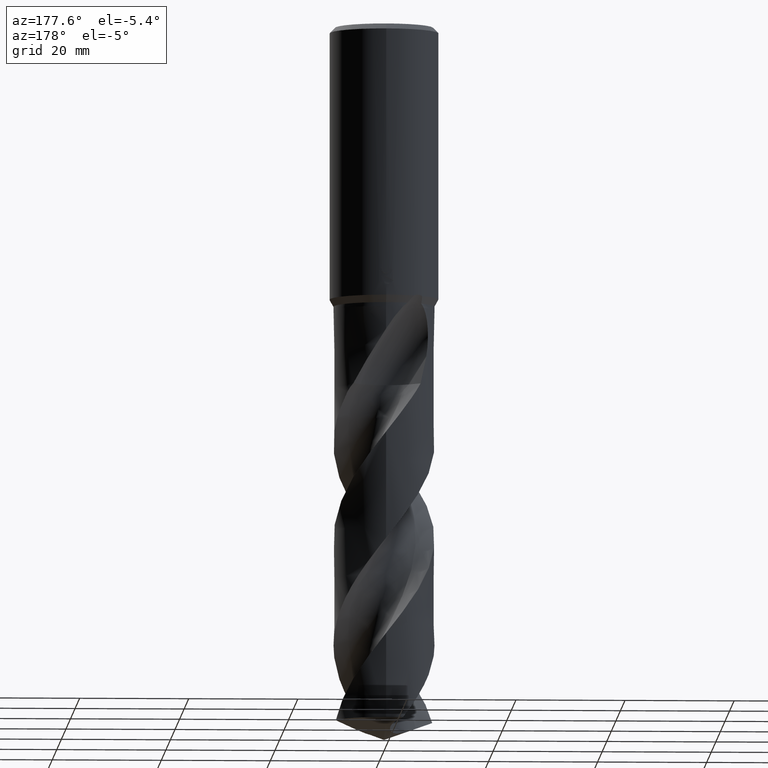
[diagram: clean part render]
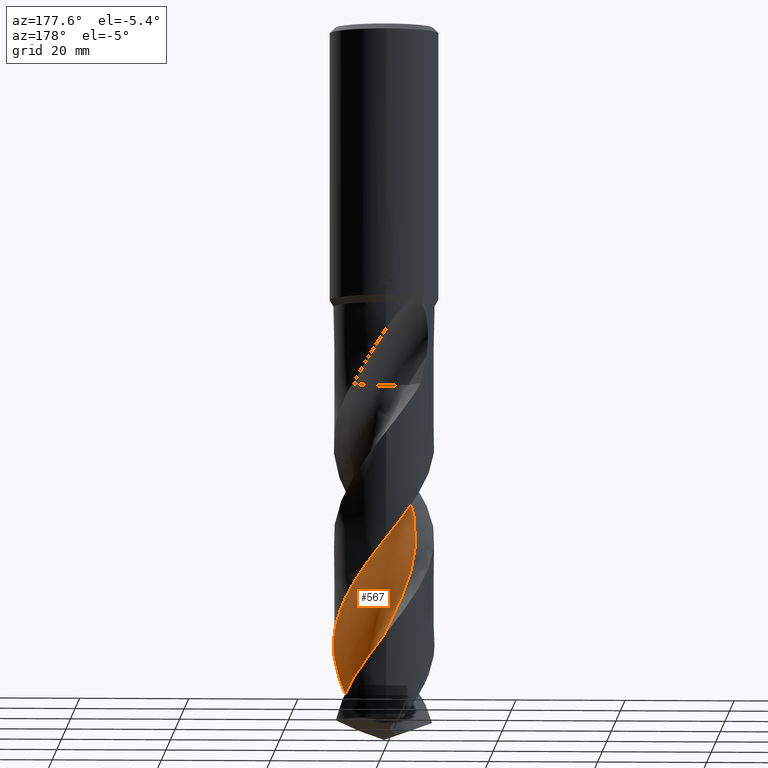
[diagram: same view with one face highlighted and labeled with its STEP entity id]
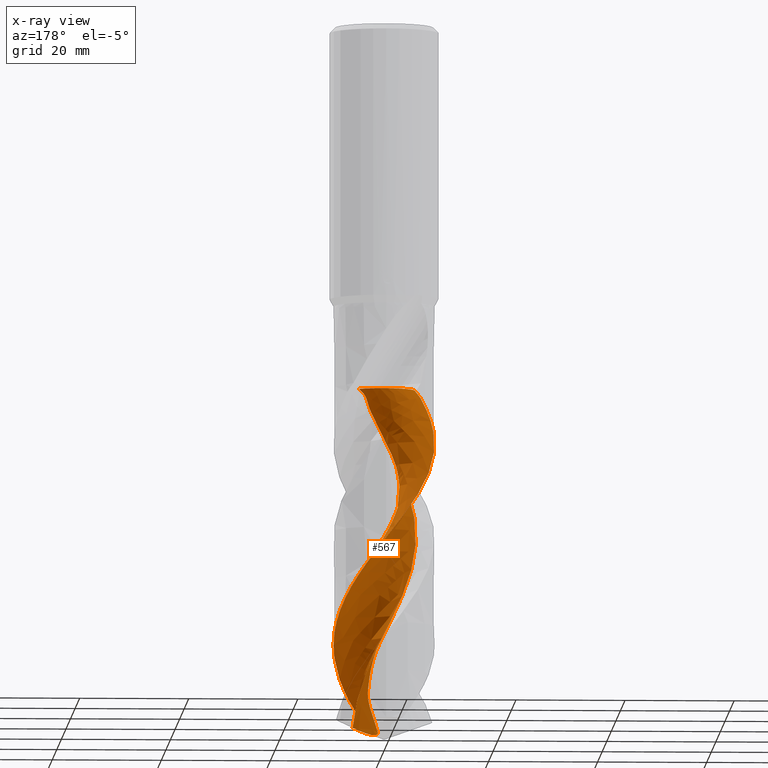
[diagram: x-ray of the same camera — body ghosted, the highlighted face saturated]
A machine part, auxiliary view. The second image highlights one B-rep face of the part: STEP entity #567.
The next image is the same camera in x-ray: the body ghosted, the highlighted face saturated — about 0% of this face is hidden behind the body in this view.
In plain terms, the highlighted face is a freeform B-spline surface patch.
Its self-contained STEP definition (entity closure, byte-faithful):
#355=EDGE_CURVE('',#383,#791,#893,.T.);
#383=VERTEX_POINT('',#925);
#431=EDGE_CURVE('',#553,#621,#977,.T.);
#443=EDGE_CURVE('',#621,#383,#989,.T.);
#499=EDGE_CURVE('',#791,#563,#1050,.T.);
#543=EDGE_CURVE('',#639,#553,#1097,.T.);
#553=VERTEX_POINT('',#1109);
#563=VERTEX_POINT('',#1119);
#567=ADVANCED_FACE('',(#1123),#1124,.F.);
#621=VERTEX_POINT('',#1183);
#639=VERTEX_POINT('',#1202);
#783=EDGE_CURVE('',#563,#639,#1361,.T.);
#791=VERTEX_POINT('',#1369);
#893=B_SPLINE_CURVE_WITH_KNOTS('',3,(#1559,#1560,#1561,#1562,#1563,#1564,#1565,#1566,#1567,#1568,#1569,#1570,#1571,#1572,#1573,#1574,#1575,#1576,#1577,#1578,#1579,#1580,#1581,#1582,#1583,#1584,#1585,#1586,#1587,#1588,#1589,#1590,#1591,#1592,#1593,#1594,#1595,#1596,#1597,#1598,#1599,#1600,#1601,#1602,#1603,#1604,#1605,#1606,#1607,#1608,#1609,#1610,#1611,#1612,#1613,#1614,#1615,#1616,#1617,#1618,#1619,#1620,#1621,#1622,#1623,#1624,#1625,#1626,#1627,#1628,#1629,#1630,#1631,#1632,#1633,#1634),.UNSPECIFIED.,.F.,.F.,(4,2,2,2,2,2,2,2,2,2,2,2,2,2,2,2,2,2,2,2,2,2,2,2,2,2,2,2,2,2,2,2,2,2,2,2,2,4),(0.0,2.11832064300494,4.9693472692603,6.57239256311317,10.9103757124786,11.9839472533228,15.4495238998669,17.1691867654679,20.5602487481099,22.2420545510874,25.5380707515213,28.4115355723641,31.3467357140805,32.7997139429561,35.999994653461,37.6848085798354,41.863467282523,42.7552555289065,46.6567465791058,48.1142510967715,52.0667540019561,53.5154554136475,56.5668609142303,57.2528555787522,58.6775095453213,62.626975586791,63.5472191643303,67.3281514971926,68.9650940796596,71.1895052999397,73.2459318676051,74.5107720238186,75.5187694687972,76.8229065498483,77.4948855891838,78.3573103883601,80.1929490453346,82.2356078114416),.UNSPECIFIED.);
#925=CARTESIAN_POINT('',(3.12799866923193,-8.70506314309571,-127.633275333038));
#977=B_SPLINE_CURVE_WITH_KNOTS('',3,(#3149,#3150,#3151,#3152,#3153,#3154,#3155,#3156,#3157,#3158,#3159,#3160,#3161,#3162,#3163,#3164,#3165,#3166,#3167,#3168,#3169,#3170,#3171,#3172,#3173,#3174,#3175,#3176,#3177,#3178,#3179,#3180,#3181,#3182,#3183,#3184,#3185,#3186,#3187,#3188,#3189,#3190,#3191,#3192,#3193,#3194,#3195,#3196,#3197,#3198,#3199,#3200,#3201,#3202,#3203,#3204,#3205,#3206),.UNSPECIFIED.,.F.,.F.,(4,1,2,2,2,2,2,2,1,2,1,2,1,2,1,2,1,2,1,2,1,2,1,2,1,2,1,2,1,2,1,2,1,2,2,4),(0.0,1.50676427478887,3.01352854957773,4.5202928243666,6.02705709915547,7.53382137394434,9.0405856487332,12.0541141983109,15.0676427478887,18.0811712974664,21.0946998470441,24.1082283966219,27.1217569461996,30.1352854957773,33.1488140453551,36.1623425949328,39.1758711445106,42.1893996940883,45.202928243666,48.2164567932438,51.2299853428215,54.2435138923992,57.257042441977,60.2705709915547,63.2840995411324,66.2976280907102,69.3111566402879,72.3246851898656,75.3382137394434,78.3517422890211,81.3652708385988,84.3787993881766,87.3923279377543,90.405856487332,93.4193850369098,96.4329135864875),.UNSPECIFIED.);
#989=B_SPLINE_CURVE_WITH_KNOTS('',3,(#3226,#3227,#3228,#3229,#3230,#3231,#3232,#3233,#3234,#3235,#3236,#3237,#3238,#3239,#3240,#3241,#3242,#3243,#3244,#3245,#3246,#3247),.UNSPECIFIED.,.F.,.F.,(4,2,2,2,2,2,2,2,2,2,4),(0.0,3.74345498001838,6.14810353303572,7.61542323529389,10.45681031974,13.7484282946639,17.5762882292907,22.0121782609306,27.1181556759734,30.401697502247,33.6869582558278),.UNSPECIFIED.);
#1050=B_SPLINE_CURVE_WITH_KNOTS('',3,(#3499,#3500,#3501,#3502,#3503,#3504,#3505,#3506,#3507,#3508,#3509,#3510,#3511,#3512,#3513,#3514,#3515,#3516,#3517,#3518,#3519,#3520,#3521,#3522,#3523,#3524,#3525,#3526,#3527,#3528,#3529,#3530,#3531,#3532,#3533,#3534,#3535,#3536,#3537,#3538,#3539,#3540,#3541,#3542,#3543,#3544,#3545,#3546,#3547,#3548,#3549,#3550,#3551,#3552,#3553,#3554,#3555,#3556,#3557,#3558,#3559,#3560,#3561,#3562,#3563,#3564,#3565,#3566,#3567,#3568,#3569,#3570,#3571,#3572,#3573,#3574),.UNSPECIFIED.,.F.,.F.,(4,2,2,2,2,2,2,2,2,2,2,2,2,2,2,2,2,2,2,2,2,2,2,2,2,2,2,2,2,2,2,2,2,2,2,2,2,4),(0.0,2.11832064300494,4.9693472692603,6.57239256311317,10.9103757124786,11.9839472533228,15.4495238998669,17.1691867654679,20.5602487481099,22.2420545510874,25.5380707515213,28.4115355723641,31.3467357140805,32.7997139429561,35.999994653461,37.6848085798354,41.863467282523,42.7552555289065,46.6567465791058,48.1142510967715,52.0667540019561,53.5154554136475,56.5668609142303,57.2528555787522,58.6775095453213,62.626975586791,63.5472191643303,67.3281514971926,68.9650940796596,71.1895052999397,73.2459318676051,74.5107720238186,75.5187694687972,76.8229065498483,77.4948855891838,78.3573103883601,80.1929490453346,82.2356078114416),.UNSPECIFIED.);
#1097=CIRCLE('',#3658,6.16666667);
#1109=CARTESIAN_POINT('',(4.36049181960334,-4.58117485039664,-65.991));
#1119=CARTESIAN_POINT('',(-5.89419878237844,-7.12877359313485,-65.991));
#1123=FACE_OUTER_BOUND('',#3710,.T.);
#1124=B_SPLINE_SURFACE_WITH_KNOTS('',3,3,((#3711,#3712,#3713,#3714,#3715,#3716,#3717,#3718,#3719,#3720,#3721,#3722,#3723,#3724,#3725,#3726,#3727,#3728,#3729,#3730,#3731,#3732,#3733,#3734,#3735,#3736,#3737,#3738,#3739,#3740,#3741,#3742,#3743,#3744,#3745,#3746,#3747,#3748,#3749,#3750,#3751,#3752,#3753,#3754,#3755,#3756,#3757,#3758,#3759,#3760,#3761,#3762,#3763,#3764,#3765,#3766,#3767,#3768),(#3769,#3770,#3771,#3772,#3773,#3774,#3775,#3776,#3777,#3778,#3779,#3780,#3781,#3782,#3783,#3784,#3785,#3786,#3787,#3788,#3789,#3790,#3791,#3792,#3793,#3794,#3795,#3796,#3797,#3798,#3799,#3800,#3801,#3802,#3803,#3804,#3805,#3806,#3807,#3808,#3809,#3810,#3811,#3812,#3813,#3814,#3815,#3816,#3817,#3818,#3819,#3820,#3821,#3822,#3823,#3824,#3825,#3826),(#3827,#3828,#3829,#3830,#3831,#3832,#3833,#3834,#3835,#3836,#3837,#3838,#3839,#3840,#3841,#3842,#3843,#3844,#3845,#3846,#3847,#3848,#3849,#3850,#3851,#3852,#3853,#3854,#3855,#3856,#3857,#3858,#3859,#3860,#3861,#3862,#3863,#3864,#3865,#3866,#3867,#3868,#3869,#3870,#3871,#3872,#3873,#3874,#3875,#3876,#3877,#3878,#3879,#3880,#3881,#3882,#3883,#3884),(#3885,#3886,#3887,#3888,#3889,#3890,#3891,#3892,#3893,#3894,#3895,#3896,#3897,#3898,#3899,#3900,#3901,#3902,#3903,#3904,#3905,#3906,#3907,#3908,#3909,#3910,#3911,#3912,#3913,#3914,#3915,#3916,#3917,#3918,#3919,#3920,#3921,#3922,#3923,#3924,#3925,#3926,#3927,#3928,#3929,#3930,#3931,#3932,#3933,#3934,#3935,#3936,#3937,#3938,#3939,#3940,#3941,#3942),(#3943,#3944,#3945,#3946,#3947,#3948,#3949,#3950,#3951,#3952,#3953,#3954,#3955,#3956,#3957,#3958,#3959,#3960,#3961,#3962,#3963,#3964,#3965,#3966,#3967,#3968,#3969,#3970,#3971,#3972,#3973,#3974,#3975,#3976,#3977,#3978,#3979,#3980,#3981,#3982,#3983,#3984,#3985,#3986,#3987,#3988,#3989,#3990,#3991,#3992,#3993,#3994,#3995,#3996,#3997,#3998,#3999,#4000),(#4001,#4002,#4003,#4004,#4005,#4006,#4007,#4008,#4009,#4010,#4011,#4012,#4013,#4014,#4015,#4016,#4017,#4018,#4019,#4020,#4021,#4022,#4023,#4024,#4025,#4026,#4027,#4028,#4029,#4030,#4031,#4032,#4033,#4034,#4035,#4036,#4037,#4038,#4039,#4040,#4041,#4042,#4043,#4044,#4045,#4046,#4047,#4048,#4049,#4050,#4051,#4052,#4053,#4054,#4055,#4056,#4057,#4058),(#4059,#4060,#4061,#4062,#4063,#4064,#4065,#4066,#4067,#4068,#4069,#4070,#4071,#4072,#4073,#4074,#4075,#4076,#4077,#4078,#4079,#4080,#4081,#4082,#4083,#4084,#4085,#4086,#4087,#4088,#4089,#4090,#4091,#4092,#4093,#4094,#4095,#4096,#4097,#4098,#4099,#4100,#4101,#4102,#4103,#4104,#4105,#4106,#4107,#4108,#4109,#4110,#4111,#4112,#4113,#4114,#4115,#4116),(#4117,#4118,#4119,#4120,#4121,#4122,#4123,#4124,#4125,#4126,#4127,#4128,#4129,#4130,#4131,#4132,#4133,#4134,#4135,#4136,#4137,#4138,#4139,#4140,#4141,#4142,#4143,#4144,#4145,#4146,#4147,#4148,#4149,#4150,#4151,#4152,#4153,#4154,#4155,#4156,#4157,#4158,#4159,#4160,#4161,#4162,#4163,#4164,#4165,#4166,#4167,#4168,#4169,#4170,#4171,#4172,#4173,#4174),(#4175,#4176,#4177,#4178,#4179,#4180,#4181,#4182,#4183,#4184,#4185,#4186,#4187,#4188,#4189,#4190,#4191,#4192,#4193,#4194,#4195,#4196,#4197,#4198,#4199,#4200,#4201,#4202,#4203,#4204,#4205,#4206,#4207,#4208,#4209,#4210,#4211,#4212,#4213,#4214,#4215,#4216,#4217,#4218,#4219,#4220,#4221,#4222,#4223,#4224,#4225,#4226,#4227,#4228,#4229,#4230,#4231,#4232),(#4233,#4234,#4235,#4236,#4237,#4238,#4239,#4240,#4241,#4242,#4243,#4244,#4245,#4246,#4247,#4248,#4249,#4250,#4251,#4252,#4253,#4254,#4255,#4256,#4257,#4258,#4259,#4260,#4261,#4262,#4263,#4264,#4265,#4266,#4267,#4268,#4269,#4270,#4271,#4272,#4273,#4274,#4275,#4276,#4277,#4278,#4279,#4280,#4281,#4282,#4283,#4284,#4285,#4286,#4287,#4288,#4289,#4290),(#4291,#4292,#4293,#4294,#4295,#4296,#4297,#4298,#4299,#4300,#4301,#4302,#4303,#4304,#4305,#4306,#4307,#4308,#4309,#4310,#4311,#4312,#4313,#4314,#4315,#4316,#4317,#4318,#4319,#4320,#4321,#4322,#4323,#4324,#4325,#4326,#4327,#4328,#4329,#4330,#4331,#4332,#4333,#4334,#4335,#4336,#4337,#4338,#4339,#4340,#4341,#4342,#4343,#4344,#4345,#4346,#4347,#4348),(#4349,#4350,#4351,#4352,#4353,#4354,#4355,#4356,#4357,#4358,#4359,#4360,#4361,#4362,#4363,#4364,#4365,#4366,#4367,#4368,#4369,#4370,#4371,#4372,#4373,#4374,#4375,#4376,#4377,#4378,#4379,#4380,#4381,#4382,#4383,#4384,#4385,#4386,#4387,#4388,#4389,#4390,#4391,#4392,#4393,#4394,#4395,#4396,#4397,#4398,#4399,#4400,#4401,#4402,#4403,#4404,#4405,#4406),(#4407,#4408,#4409,#4410,#4411,#4412,#4413,#4414,#4415,#4416,#4417,#4418,#4419,#4420,#4421,#4422,#4423,#4424,#4425,#4426,#4427,#4428,#4429,#4430,#4431,#4432,#4433,#4434,#4435,#4436,#4437,#4438,#4439,#4440,#4441,#4442,#4443,#4444,#4445,#4446,#4447,#4448,#4449,#4450,#4451,#4452,#4453,#4454,#4455,#4456,#4457,#4458,#4459,#4460,#4461,#4462,#4463,#4464),(#4465,#4466,#4467,#4468,#4469,#4470,#4471,#4472,#4473,#4474,#4475,#4476,#4477,#4478,#4479,#4480,#4481,#4482,#4483,#4484,#4485,#4486,#4487,#4488,#4489,#4490,#4491,#4492,#4493,#4494,#4495,#4496,#4497,#4498,#4499,#4500,#4501,#4502,#4503,#4504,#4505,#4506,#4507,#4508,#4509,#4510,#4511,#4512,#4513,#4514,#4515,#4516,#4517,#4518,#4519,#4520,#4521,#4522)),.UNSPECIFIED.,.F.,.F.,.F.,(4,1,1,1,1,1,1,1,1,1,1,4),(4,1,2,2,2,2,2,2,1,2,1,2,1,2,1,2,1,2,1,2,1,2,1,2,1,2,1,2,1,2,1,2,1,2,2,4),(-2.63627915779103E-016,0.294525379076063,0.589050758152125,0.883576137228188,1.17810151630425,1.47262689538031,1.76715227445638,2.06167765353244,2.3562030326085,2.65072841168457,2.94525379076063,3.141604043478),(0.0,1.50676427478887,3.01352854957773,4.5202928243666,6.02705709915547,7.53382137394434,9.0405856487332,12.0541141983109,15.0676427478887,18.0811712974664,21.0946998470441,24.1082283966219,27.1217569461996,30.1352854957773,33.1488140453551,36.1623425949328,39.1758711445106,42.1893996940883,45.202928243666,48.2164567932438,51.2299853428215,54.2435138923992,57.257042441977,60.2705709915547,63.2840995411324,66.2976280907102,69.3111566402879,72.3246851898656,75.3382137394434,78.3517422890211,81.3652708385988,84.3787993881766,87.3923279377543,90.405856487332,93.4193850369098,96.4329135864875),.UNSPECIFIED.);
#1183=CARTESIAN_POINT('',(5.79250678751205,0.656333092934829,-128.878209366275));
#1202=CARTESIAN_POINT('',(0.670089583919975,-2.81149302278078,-65.991));
#1361=CIRCLE('',#5607,6.16666667);
#1369=CARTESIAN_POINT('',(2.20589998483018E-013,9.24995635927933,-94.6263689090521));
#1559=CARTESIAN_POINT('',(3.12799866923195,-8.70506314309565,-127.633275333038));
#1560=CARTESIAN_POINT('',(3.53745953602358,-8.55793039668349,-127.077145239537));
#1561=CARTESIAN_POINT('',(3.93654870097654,-8.38190353097231,-126.520403098301));
#1562=CARTESIAN_POINT('',(4.84119688062088,-7.90378869630369,-125.216837061459));
#1563=CARTESIAN_POINT('',(5.33272222783643,-7.58079747988733,-124.473765338642));
#1564=CARTESIAN_POINT('',(6.04729318262605,-7.00723854168219,-123.304959905524));
#1565=CARTESIAN_POINT('',(6.29281267950194,-6.78755131637487,-122.882752920527));
#1566=CARTESIAN_POINT('',(7.15584772751321,-5.92847153251508,-121.324386963598));
#1567=CARTESIAN_POINT('',(7.69205427901133,-5.21389160777228,-120.204004278906));
#1568=CARTESIAN_POINT('',(8.2235441798068,-4.24075380545887,-118.785427216565));
#1569=CARTESIAN_POINT('',(8.32207309340127,-4.04400568369597,-118.503453893796));
#1570=CARTESIAN_POINT('',(8.70939184297009,-3.1961287752237,-117.312391473108));
#1571=CARTESIAN_POINT('',(8.92945239506874,-2.51676202367452,-116.41203189278));
#1572=CARTESIAN_POINT('',(9.13890745013429,-1.47220800858097,-115.052479026379));
#1573=CARTESIAN_POINT('',(9.18838985908806,-1.12255693695536,-114.599938246418));
#1574=CARTESIAN_POINT('',(9.27577897375508,-0.0777353174267558,-113.26000698155));
#1575=CARTESIAN_POINT('',(9.25539922120285,0.620021359371036,-112.379430219423));
#1576=CARTESIAN_POINT('',(9.10798480879243,1.65103960326463,-111.050659496229));
#1577=CARTESIAN_POINT('',(9.04008596491669,1.98938449703662,-110.6085805123));
#1578=CARTESIAN_POINT('',(8.78397917873107,2.97653355415482,-109.304878602738));
#1579=CARTESIAN_POINT('',(8.54326089087448,3.6099766612392,-108.449450528582));
#1580=CARTESIAN_POINT('',(7.96694165451181,4.73680537662421,-106.835688512658));
#1581=CARTESIAN_POINT('',(7.6491357134442,5.23453431722166,-106.080899446267));
#1582=CARTESIAN_POINT('',(6.91479101775946,6.17335837287455,-104.561611833716));
#1583=CARTESIAN_POINT('',(6.49855061005392,6.61001415241772,-103.799035651641));
#1584=CARTESIAN_POINT('',(5.81801022139387,7.19730758657678,-102.650319748902));
#1585=CARTESIAN_POINT('',(5.58361718588016,7.38063533705647,-102.26884755994));
#1586=CARTESIAN_POINT('',(4.80492827589954,7.93124981250303,-101.050486050329));
#1587=CARTESIAN_POINT('',(4.23048933690944,8.25200957490877,-100.219689096994));
#1588=CARTESIAN_POINT('',(3.30873131074748,8.64485483914062,-98.9417229448408));
#1589=CARTESIAN_POINT('',(2.98390860434205,8.76223705362629,-98.499459868555));
#1590=CARTESIAN_POINT('',(1.83518665112191,9.10626902518561,-96.9658952319854));
#1591=CARTESIAN_POINT('',(0.986832490368632,9.23675613838307,-95.8884116535246));
#1592=CARTESIAN_POINT('',(-0.0496460504047326,9.25161957873373,-94.5629588101807));
#1593=CARTESIAN_POINT('',(-0.231736444636859,9.24884671120893,-94.3294259785994));
#1594=CARTESIAN_POINT('',(-1.20984403352213,9.20505443760328,-93.0767164227222));
#1595=CARTESIAN_POINT('',(-1.99826751808955,9.06669312637243,-92.0697230043724));
#1596=CARTESIAN_POINT('',(-3.04410335225264,8.73978498605468,-90.6709939460779));
#1597=CARTESIAN_POINT('',(-3.32368617580423,8.63731183684109,-90.2893715267394));
#1598=CARTESIAN_POINT('',(-4.34073554396537,8.20792883992874,-88.8776942841739));
#1599=CARTESIAN_POINT('',(-5.03950742904136,7.7984408890502,-87.8593752884493));
#1600=CARTESIAN_POINT('',(-5.909914458063,7.12192616462716,-86.4511005915328));
#1601=CARTESIAN_POINT('',(-6.13430166788375,6.92958996579909,-86.0722378314811));
#1602=CARTESIAN_POINT('',(-6.80208698547724,6.29926799738335,-84.8988440786845));
#1603=CARTESIAN_POINT('',(-7.21081570498076,5.82702653719332,-84.1093453024386));
#1604=CARTESIAN_POINT('',(-7.64972473869941,5.20218862403361,-83.1359017862277));
#1605=CARTESIAN_POINT('',(-7.72761202509101,5.08576519306054,-82.9572249242619));
#1606=CARTESIAN_POINT('',(-7.9588748168292,4.72251924153376,-82.4070075227161));
#1607=CARTESIAN_POINT('',(-8.10315957395624,4.47041537631686,-82.0344745017758));
#1608=CARTESIAN_POINT('',(-8.6022171673055,3.49457153715681,-80.6335200971157));
#1609=CARTESIAN_POINT('',(-8.87369272478953,2.732720629135,-79.6171443968293));
#1610=CARTESIAN_POINT('',(-9.08255763927758,1.76172316379995,-78.3485510991907));
#1611=CARTESIAN_POINT('',(-9.11638667295774,1.57730290751792,-78.1084002430637));
#1612=CARTESIAN_POINT('',(-9.26042889508099,0.631079182032819,-76.8841284308856));
#1613=CARTESIAN_POINT('',(-9.2809165337299,-0.141986462003823,-75.9075005106091));
#1614=CARTESIAN_POINT('',(-9.17233196685203,-1.24134238022934,-74.4987500230454));
#1615=CARTESIAN_POINT('',(-9.12161447906533,-1.57103214350514,-74.0722018736109));
#1616=CARTESIAN_POINT('',(-8.96059636186603,-2.33954741705828,-73.0676532661282));
#1617=CARTESIAN_POINT('',(-8.83623548234285,-2.7712242914087,-72.4935704936069));
#1618=CARTESIAN_POINT('',(-8.54135534811887,-3.57424776256459,-71.4032855478604));
#1619=CARTESIAN_POINT('',(-8.37775498881595,-3.94217033344252,-70.9052316145694));
#1620=CARTESIAN_POINT('',(-8.0712834965376,-4.52530828949989,-70.0778623180959));
#1621=CARTESIAN_POINT('',(-7.94410949276849,-4.74509776318494,-69.7583494645151));
#1622=CARTESIAN_POINT('',(-7.70092104678386,-5.1280960420649,-69.1557573329146));
#1623=CARTESIAN_POINT('',(-7.59393068796895,-5.28421332271355,-68.8914179040406));
#1624=CARTESIAN_POINT('',(-7.36241600126804,-5.60405913544913,-68.3442268434071));
#1625=CARTESIAN_POINT('',(-7.2504237099317,-5.74530813101913,-68.0911091384679));
#1626=CARTESIAN_POINT('',(-7.12870643838263,-5.89464789552532,-67.8314997057218));
#1627=CARTESIAN_POINT('',(-7.08596820802008,-5.94598474414852,-67.7442901501336));
#1628=CARTESIAN_POINT('',(-6.98505864043251,-6.06445685205768,-67.5473439581072));
#1629=CARTESIAN_POINT('',(-6.92607189343208,-6.13179871097911,-67.43847333101));
#1630=CARTESIAN_POINT('',(-6.73389395195574,-6.34458392150476,-67.1029531440124));
#1631=CARTESIAN_POINT('',(-6.59291530673701,-6.49149223526173,-66.8834953676605));
#1632=CARTESIAN_POINT('',(-6.27126257232997,-6.80352690698684,-66.4346465471613));
#1633=CARTESIAN_POINT('',(-6.0893278268166,-6.96743774819149,-66.2089137235329));
#1634=CARTESIAN_POINT('',(-5.89419878237844,-7.12877359313484,-65.991));
#3149=CARTESIAN_POINT('',(4.36049181960335,-4.58117485039664,-65.991));
#3150=CARTESIAN_POINT('',(3.98459460357532,-4.55746940716539,-66.3289722237667));
#3151=CARTESIAN_POINT('',(3.37229145627536,-4.58171959007194,-67.0026720789865));
#3152=CARTESIAN_POINT('',(3.03932760816644,-4.733800996979,-67.6749212556199));
#3153=CARTESIAN_POINT('',(2.8319664083427,-4.96220815124569,-68.3529884375141));
#3154=CARTESIAN_POINT('',(2.72746533010837,-5.0744082922871,-68.6928687729809));
#3155=CARTESIAN_POINT('',(2.51304388479756,-5.29347875129189,-69.3754679697432));
#3156=CARTESIAN_POINT('',(2.37625387560852,-5.37831479440014,-69.7162883062073));
#3157=CARTESIAN_POINT('',(2.06007882371245,-5.49732675683152,-70.3936795554833));
#3158=CARTESIAN_POINT('',(1.8937065640432,-5.54442352339913,-70.7317555857331));
#3159=CARTESIAN_POINT('',(1.55070687596719,-5.61559437683723,-71.4059548698588));
#3160=CARTESIAN_POINT('',(1.3840400889845,-5.65120435966834,-71.7435655819606));
#3161=CARTESIAN_POINT('',(0.895425661241371,-5.75877594878408,-72.7592757729783));
#3162=CARTESIAN_POINT('',(0.563196071902248,-5.80145072180603,-73.4366888570342));
#3163=CARTESIAN_POINT('',(-0.0992877870004536,-5.83922461746254,-74.7926193766415));
#3164=CARTESIAN_POINT('',(-0.77228602777113,-5.80363808466616,-76.1473379397411));
#3165=CARTESIAN_POINT('',(-1.42734280459057,-5.65510314395466,-77.5007496303316));
#3166=CARTESIAN_POINT('',(-2.06397574818074,-5.46388193511608,-78.8554867114885));
#3167=CARTESIAN_POINT('',(-2.68516950536889,-5.20133094894003,-80.210522620237));
#3168=CARTESIAN_POINT('',(-3.25151600745142,-4.83842588535571,-81.5645653796791));
#3169=CARTESIAN_POINT('',(-3.78688960835953,-4.44579544617711,-82.9190360908349));
#3170=CARTESIAN_POINT('',(-4.28362793732488,-3.99064543821944,-84.2739613593625));
#3171=CARTESIAN_POINT('',(-4.69431775659611,-3.45795235274278,-85.6280431141647));
#3172=CARTESIAN_POINT('',(-5.0653163184034,-2.9070282121591,-86.9825392851021));
#3173=CARTESIAN_POINT('',(-5.37893733062004,-2.31052344037236,-88.3374619606657));
#3174=CARTESIAN_POINT('',(-5.58570243162594,-1.67046529939513,-89.6915336383457));
#3175=CARTESIAN_POINT('',(-5.74911990768934,-1.0267519547556,-91.0460391319602));
#3176=CARTESIAN_POINT('',(-5.84310349000064,-0.359451122275705,-92.4009732203509));
#3177=CARTESIAN_POINT('',(-5.82171709907748,0.312838319864537,-93.755051788875));
#3178=CARTESIAN_POINT('',(-5.75826208616793,0.973945699700024,-95.1095582928696));
#3179=CARTESIAN_POINT('',(-5.62150918401178,1.63381254620127,-96.4644896906565));
#3180=CARTESIAN_POINT('',(-5.3745330074894,2.25942981641266,-97.8185637524068));
#3181=CARTESIAN_POINT('',(-5.09175919587441,2.86032883723367,-99.1730680128093));
#3182=CARTESIAN_POINT('',(-4.74036019309555,3.43532461660744,-100.528000786431));
#3183=CARTESIAN_POINT('',(-4.29667864457885,3.94085949760309,-101.882074109032));
#3184=CARTESIAN_POINT('',(-3.82761724078931,4.4110268111286,-103.236572146132));
#3185=CARTESIAN_POINT('',(-3.30272264505755,4.83365106576114,-104.591499898587));
#3186=CARTESIAN_POINT('',(-2.71442587413616,5.15975023719825,-105.945572913124));
#3187=CARTESIAN_POINT('',(-2.11417559645739,5.44398975474154,-107.300073427211));
#3188=CARTESIAN_POINT('',(-1.47743079346325,5.66464417560461,-108.655005004126));
#3189=CARTESIAN_POINT('',(-0.813595597171417,5.77305984957365,-110.009087087067));
#3190=CARTESIAN_POINT('',(-0.152633118171326,5.8380392828764,-111.36360009087));
#3191=CARTESIAN_POINT('',(0.52122147077697,5.83085162219481,-112.718529075645));
#3192=CARTESIAN_POINT('',(1.18266897158723,5.70894255922644,-114.072588923244));
#3193=CARTESIAN_POINT('',(1.82674602050477,5.5471801853749,-115.427077057248));
#3194=CARTESIAN_POINT('',(2.45862343099108,5.31304801566034,-116.782023614604));
#3195=CARTESIAN_POINT('',(3.04010206260751,4.97479994097019,-118.136141669631));
#3196=CARTESIAN_POINT('',(3.59172695006929,4.60472008788677,-119.49068278036));
#3197=CARTESIAN_POINT('',(4.10748582066244,4.1710046949856,-120.845557797869));
#3198=CARTESIAN_POINT('',(4.54103733626556,3.65723356216192,-122.199525567929));
#3199=CARTESIAN_POINT('',(4.93607123275762,3.12397199683368,-123.553969676452));
#3200=CARTESIAN_POINT('',(5.2750811343816,2.54139177726804,-124.909118861421));
#3201=CARTESIAN_POINT('',(5.50707615591642,1.90842830833863,-126.263489860106));
#3202=CARTESIAN_POINT('',(5.69477159021581,1.26940039868607,-127.618081739226));
#3203=CARTESIAN_POINT('',(5.7582196583618,0.94001409284033,-128.295128969849));
#3204=CARTESIAN_POINT('',(5.83814486520704,0.281612871359107,-129.648426865452));
#3205=CARTESIAN_POINT('',(5.83570879420513,-0.0584343450602422,-130.325411150619));
#3206=CARTESIAN_POINT('',(5.79597371907664,-0.398291326374546,-131.001902906362));
#3226=CARTESIAN_POINT('',(5.79250678751205,0.656333092934842,-128.878209366275));
#3227=CARTESIAN_POINT('',(4.7060786657579,0.200995015799616,-129.289781654158));
#3228=CARTESIAN_POINT('',(3.76118220488228,-0.394322653240207,-129.651211069401));
#3229=CARTESIAN_POINT('',(2.58754330522632,-1.32367783655094,-129.956947020297));
#3230=CARTESIAN_POINT('',(2.24828903533579,-1.65250790324161,-129.99544809334));
#3231=CARTESIAN_POINT('',(1.81536704544536,-2.15288979058535,-129.979070981317));
#3232=CARTESIAN_POINT('',(1.66675033058226,-2.34915149385034,-129.954714205888));
#3233=CARTESIAN_POINT('',(1.27765593440868,-2.96106930499235,-129.836576888972));
#3234=CARTESIAN_POINT('',(1.09612908059015,-3.3904619278528,-129.705372944088));
#3235=CARTESIAN_POINT('',(0.875901736872151,-4.36238723100191,-129.382991405265));
#3236=CARTESIAN_POINT('',(0.867183044820998,-4.89657867392256,-129.190058530245));
#3237=CARTESIAN_POINT('',(1.05815750256394,-6.02748266354239,-128.772626326172));
#3238=CARTESIAN_POINT('',(1.28982659278499,-6.60711413275867,-128.550964288967));
#3239=CARTESIAN_POINT('',(2.00438134999701,-7.74056875335819,-128.09104356287));
#3240=CARTESIAN_POINT('',(2.51526232392447,-8.26694056469725,-127.858545330883));
#3241=CARTESIAN_POINT('',(3.79356748271381,-9.18107011608377,-127.388551646726));
#3242=CARTESIAN_POINT('',(4.57924591112407,-9.52976627018649,-127.1585597555));
#3243=CARTESIAN_POINT('',(5.94141305140003,-9.85944739490413,-126.812816498305));
#3244=CARTESIAN_POINT('',(6.49059503783716,-9.92685053288068,-126.686216727511));
#3245=CARTESIAN_POINT('',(7.59608579580801,-9.94014911771935,-126.449540578918));
#3246=CARTESIAN_POINT('',(8.15075002533687,-9.88597278896636,-126.33983422596));
#3247=CARTESIAN_POINT('',(8.69558381459903,-9.77301499657521,-126.238732315206));
#3499=CARTESIAN_POINT('',(3.12799866923195,-8.70506314309565,-127.633275333038));
#3500=CARTESIAN_POINT('',(3.53745953602358,-8.55793039668349,-127.077145239537));
#3501=CARTESIAN_POINT('',(3.93654870097654,-8.38190353097231,-126.520403098301));
#3502=CARTESIAN_POINT('',(4.84119688062088,-7.90378869630369,-125.216837061459));
#3503=CARTESIAN_POINT('',(5.33272222783643,-7.58079747988733,-124.473765338642));
#3504=CARTESIAN_POINT('',(6.04729318262605,-7.00723854168219,-123.304959905524));
#3505=CARTESIAN_POINT('',(6.29281267950194,-6.78755131637487,-122.882752920527));
#3506=CARTESIAN_POINT('',(7.15584772751321,-5.92847153251508,-121.324386963598));
#3507=CARTESIAN_POINT('',(7.69205427901133,-5.21389160777228,-120.204004278906));
#3508=CARTESIAN_POINT('',(8.2235441798068,-4.24075380545887,-118.785427216565));
#3509=CARTESIAN_POINT('',(8.32207309340127,-4.04400568369597,-118.503453893796));
#3510=CARTESIAN_POINT('',(8.70939184297009,-3.1961287752237,-117.312391473108));
#3511=CARTESIAN_POINT('',(8.92945239506874,-2.51676202367452,-116.41203189278));
#3512=CARTESIAN_POINT('',(9.13890745013429,-1.47220800858097,-115.052479026379));
#3513=CARTESIAN_POINT('',(9.18838985908806,-1.12255693695536,-114.599938246418));
#3514=CARTESIAN_POINT('',(9.27577897375508,-0.0777353174267558,-113.26000698155));
#3515=CARTESIAN_POINT('',(9.25539922120285,0.620021359371036,-112.379430219423));
#3516=CARTESIAN_POINT('',(9.10798480879243,1.65103960326463,-111.050659496229));
#3517=CARTESIAN_POINT('',(9.04008596491669,1.98938449703662,-110.6085805123));
#3518=CARTESIAN_POINT('',(8.78397917873107,2.97653355415482,-109.304878602738));
#3519=CARTESIAN_POINT('',(8.54326089087448,3.6099766612392,-108.449450528582));
#3520=CARTESIAN_POINT('',(7.96694165451181,4.73680537662421,-106.835688512658));
#3521=CARTESIAN_POINT('',(7.6491357134442,5.23453431722166,-106.080899446267));
#3522=CARTESIAN_POINT('',(6.91479101775946,6.17335837287455,-104.561611833716));
#3523=CARTESIAN_POINT('',(6.49855061005392,6.61001415241772,-103.799035651641));
#3524=CARTESIAN_POINT('',(5.81801022139387,7.19730758657678,-102.650319748902));
#3525=CARTESIAN_POINT('',(5.58361718588016,7.38063533705647,-102.26884755994));
#3526=CARTESIAN_POINT('',(4.80492827589954,7.93124981250303,-101.050486050329));
#3527=CARTESIAN_POINT('',(4.23048933690944,8.25200957490877,-100.219689096994));
#3528=CARTESIAN_POINT('',(3.30873131074748,8.64485483914062,-98.9417229448408));
#3529=CARTESIAN_POINT('',(2.98390860434205,8.76223705362629,-98.499459868555));
#3530=CARTESIAN_POINT('',(1.83518665112191,9.10626902518561,-96.9658952319854));
#3531=CARTESIAN_POINT('',(0.986832490368632,9.23675613838307,-95.8884116535246));
#3532=CARTESIAN_POINT('',(-0.0496460504047326,9.25161957873373,-94.5629588101807));
#3533=CARTESIAN_POINT('',(-0.231736444636859,9.24884671120893,-94.3294259785994));
#3534=CARTESIAN_POINT('',(-1.20984403352213,9.20505443760328,-93.0767164227222));
#3535=CARTESIAN_POINT('',(-1.99826751808955,9.06669312637243,-92.0697230043724));
#3536=CARTESIAN_POINT('',(-3.04410335225264,8.73978498605468,-90.6709939460779));
#3537=CARTESIAN_POINT('',(-3.32368617580423,8.63731183684109,-90.2893715267394));
#3538=CARTESIAN_POINT('',(-4.34073554396537,8.20792883992874,-88.8776942841739));
#3539=CARTESIAN_POINT('',(-5.03950742904136,7.7984408890502,-87.8593752884493));
#3540=CARTESIAN_POINT('',(-5.909914458063,7.12192616462716,-86.4511005915328));
#3541=CARTESIAN_POINT('',(-6.13430166788375,6.92958996579909,-86.0722378314811));
#3542=CARTESIAN_POINT('',(-6.80208698547724,6.29926799738335,-84.8988440786845));
#3543=CARTESIAN_POINT('',(-7.21081570498076,5.82702653719332,-84.1093453024386));
#3544=CARTESIAN_POINT('',(-7.64972473869941,5.20218862403361,-83.1359017862277));
#3545=CARTESIAN_POINT('',(-7.72761202509101,5.08576519306054,-82.9572249242619));
#3546=CARTESIAN_POINT('',(-7.9588748168292,4.72251924153376,-82.4070075227161));
#3547=CARTESIAN_POINT('',(-8.10315957395624,4.47041537631686,-82.0344745017758));
#3548=CARTESIAN_POINT('',(-8.6022171673055,3.49457153715681,-80.6335200971157));
#3549=CARTESIAN_POINT('',(-8.87369272478953,2.732720629135,-79.6171443968293));
#3550=CARTESIAN_POINT('',(-9.08255763927758,1.76172316379995,-78.3485510991907));
#3551=CARTESIAN_POINT('',(-9.11638667295774,1.57730290751792,-78.1084002430637));
#3552=CARTESIAN_POINT('',(-9.26042889508099,0.631079182032819,-76.8841284308856));
#3553=CARTESIAN_POINT('',(-9.2809165337299,-0.141986462003823,-75.9075005106091));
#3554=CARTESIAN_POINT('',(-9.17233196685203,-1.24134238022934,-74.4987500230454));
#3555=CARTESIAN_POINT('',(-9.12161447906533,-1.57103214350514,-74.0722018736109));
#3556=CARTESIAN_POINT('',(-8.96059636186603,-2.33954741705828,-73.0676532661282));
#3557=CARTESIAN_POINT('',(-8.83623548234285,-2.7712242914087,-72.4935704936069));
#3558=CARTESIAN_POINT('',(-8.54135534811887,-3.57424776256459,-71.4032855478604));
#3559=CARTESIAN_POINT('',(-8.37775498881595,-3.94217033344252,-70.9052316145694));
#3560=CARTESIAN_POINT('',(-8.0712834965376,-4.52530828949989,-70.0778623180959));
#3561=CARTESIAN_POINT('',(-7.94410949276849,-4.74509776318494,-69.7583494645151));
#3562=CARTESIAN_POINT('',(-7.70092104678386,-5.1280960420649,-69.1557573329146));
#3563=CARTESIAN_POINT('',(-7.59393068796895,-5.28421332271355,-68.8914179040406));
#3564=CARTESIAN_POINT('',(-7.36241600126804,-5.60405913544913,-68.3442268434071));
#3565=CARTESIAN_POINT('',(-7.2504237099317,-5.74530813101913,-68.0911091384679));
#3566=CARTESIAN_POINT('',(-7.12870643838263,-5.89464789552532,-67.8314997057218));
#3567=CARTESIAN_POINT('',(-7.08596820802008,-5.94598474414852,-67.7442901501336));
#3568=CARTESIAN_POINT('',(-6.98505864043251,-6.06445685205768,-67.5473439581072));
#3569=CARTESIAN_POINT('',(-6.92607189343208,-6.13179871097911,-67.43847333101));
#3570=CARTESIAN_POINT('',(-6.73389395195574,-6.34458392150476,-67.1029531440124));
#3571=CARTESIAN_POINT('',(-6.59291530673701,-6.49149223526173,-66.8834953676605));
#3572=CARTESIAN_POINT('',(-6.27126257232997,-6.80352690698684,-66.4346465471613));
#3573=CARTESIAN_POINT('',(-6.0893278268166,-6.96743774819149,-66.2089137235329));
#3574=CARTESIAN_POINT('',(-5.89419878237844,-7.12877359313484,-65.991));
#3658=AXIS2_PLACEMENT_3D('',#5941,#5942,#5943);
#3710=EDGE_LOOP('',(#5965,#5966,#5967,#5968,#5969,#5970));
#3711=CARTESIAN_POINT('',(-4.36049181960336,-13.3021584896034,-65.991));
#3712=CARTESIAN_POINT('',(-4.7311571901712,-13.2836848912122,-66.3290988377408));
#3713=CARTESIAN_POINT('',(-5.4804750138058,-13.1745933428308,-67.0100884646214));
#3714=CARTESIAN_POINT('',(-6.22854118738161,-12.8815052013142,-67.6941864462914));
#3715=CARTESIAN_POINT('',(-6.9559637764459,-12.4771851270252,-68.3709865473958));
#3716=CARTESIAN_POINT('',(-7.30943086348441,-12.2542943868046,-68.70804203355));
#3717=CARTESIAN_POINT('',(-7.99240703801407,-11.76848419113,-69.3791948844024));
#3718=CARTESIAN_POINT('',(-8.32394101761041,-11.5215542259004,-69.7154135665229));
#3719=CARTESIAN_POINT('',(-8.97118954911276,-11.0240464233471,-70.392541908327));
#3720=CARTESIAN_POINT('',(-9.28504606952259,-10.7651806054155,-70.7317698244488));
#3721=CARTESIAN_POINT('',(-9.89210136133284,-10.2289303812651,-71.4124225559712));
#3722=CARTESIAN_POINT('',(-10.1832339333248,-9.94479694477256,-71.7521853593635));
#3723=CARTESIAN_POINT('',(-11.0131702953833,-9.04498004106535,-72.7682538672528));
#3724=CARTESIAN_POINT('',(-11.5149707364681,-8.39780779381518,-73.4453224076021));
#3725=CARTESIAN_POINT('',(-12.3966827531754,-7.02125746774644,-74.7982284709448));
#3726=CARTESIAN_POINT('',(-13.1635659748488,-5.5737784658622,-76.1524916446277));
#3727=CARTESIAN_POINT('',(-13.6722144470307,-4.01697068517904,-77.5082135173718));
#3728=CARTESIAN_POINT('',(-14.0381923066072,-2.42440779170273,-78.8624546050382));
#3729=CARTESIAN_POINT('',(-14.2720231113776,-0.804329472408511,-80.2163619378903));
#3730=CARTESIAN_POINT('',(-14.2269361436234,0.832790074010305,-81.5713790694807));
#3731=CARTESIAN_POINT('',(-14.033273968214,2.45594653782552,-82.9259179917185));
#3732=CARTESIAN_POINT('',(-13.7058162202924,4.0600622996206,-84.2799489765356));
#3733=CARTESIAN_POINT('',(-13.1105634385237,5.58575545226968,-85.6349224336625));
#3734=CARTESIAN_POINT('',(-12.3806681762063,7.04824011940031,-86.9894328522735));
#3735=CARTESIAN_POINT('',(-11.5312431554466,8.4477217601861,-88.3434667250519));
#3736=CARTESIAN_POINT('',(-10.4560513443745,9.68302215718512,-89.6984514699357));
#3737=CARTESIAN_POINT('',(-9.27534472729856,10.8133330466839,-91.0529514903958));
#3738=CARTESIAN_POINT('',(-8.00339251543997,11.8439911011802,-92.4069726201123));
#3739=CARTESIAN_POINT('',(-6.57435491783403,12.6439167332411,-93.7619496562669));
#3740=CARTESIAN_POINT('',(-5.08143964170971,13.3094135990867,-95.1164485295929));
#3741=CARTESIAN_POINT('',(-3.53625760480898,13.8503043067772,-96.4704726388618));
#3742=CARTESIAN_POINT('',(-1.92106699969615,14.1209483326657,-97.8254547193095));
#3743=CARTESIAN_POINT('',(-0.291115818378799,14.2434641896524,-99.1799561539879));
#3744=CARTESIAN_POINT('',(1.34596413426334,14.2310472494415,-100.533978824306));
#3745=CARTESIAN_POINT('',(2.95771344855167,13.940648451697,-101.888961703896));
#3746=CARTESIAN_POINT('',(4.53335891279652,13.5058582922845,-103.243469893904));
#3747=CARTESIAN_POINT('',(6.07017426655994,12.9416499952325,-104.597497806064));
#3748=CARTESIAN_POINT('',(7.48932839626655,12.1243278658063,-105.952481126731));
#3749=CARTESIAN_POINT('',(8.82577033421767,11.1832775158426,-107.306987282275));
#3750=CARTESIAN_POINT('',(10.0819858899438,10.1335039855104,-108.661012290993));
#3751=CARTESIAN_POINT('',(11.142020287538,8.88516569393114,-110.015985097022));
#3752=CARTESIAN_POINT('',(12.0824383463603,7.5482669995142,-111.370474526477));
#3753=CARTESIAN_POINT('',(12.9106442107974,6.13609142858798,-112.724497272797));
#3754=CARTESIAN_POINT('',(13.4871157922492,4.60318972406921,-114.079496313186));
#3755=CARTESIAN_POINT('',(13.9210484283591,3.02728973583658,-115.434023858298));
#3756=CARTESIAN_POINT('',(14.2239474230933,1.41844469615816,-116.788046233815));
#3757=CARTESIAN_POINT('',(14.2492892806476,-0.21902745638407,-118.142976609228));
#3758=CARTESIAN_POINT('',(14.1260835942381,-1.8488797618382,-119.49740950293));
#3759=CARTESIAN_POINT('',(13.8683142703784,-3.46563029931198,-120.851444529319));
#3760=CARTESIAN_POINT('',(13.3390302258906,-5.01562211245331,-122.20658227968));
#3761=CARTESIAN_POINT('',(12.6720728419863,-6.50812422582994,-123.561301594605));
#3762=CARTESIAN_POINT('',(11.8834838377219,-7.9426597633649,-124.915346877425));
#3763=CARTESIAN_POINT('',(10.8640062561938,-9.223552007155,-126.27011060753));
#3764=CARTESIAN_POINT('',(9.73558775864511,-10.4049044655368,-127.62436265603));
#3765=CARTESIAN_POINT('',(9.12163623225628,-10.9473712764734,-128.301634173365));
#3766=CARTESIAN_POINT('',(7.80513449095101,-11.9148350454989,-129.655672052103));
#3767=CARTESIAN_POINT('',(7.1115864402803,-12.3445447268806,-130.331618810168));
#3768=CARTESIAN_POINT('',(6.39048202508159,-12.7172859339783,-131.008460538733));
#3769=CARTESIAN_POINT('',(-4.78856468775403,-12.8740476881869,-65.9909999999996));
#3770=CARTESIAN_POINT('',(-5.15948688605881,-12.8558308956351,-66.3291058033547));
#3771=CARTESIAN_POINT('',(-5.9022591557794,-12.7400139995486,-67.0104964004437));
#3772=CARTESIAN_POINT('',(-6.62847060504196,-12.4265494394166,-67.695246118602));
#3773=CARTESIAN_POINT('',(-7.32483315016103,-11.9967023969605,-68.371976528528));
#3774=CARTESIAN_POINT('',(-7.66185137097515,-11.7615915767594,-68.7088766334966));
#3775=CARTESIAN_POINT('',(-8.31022649072399,-11.2527831783278,-69.3793998812882));
#3776=CARTESIAN_POINT('',(-8.62547439989543,-10.9962943719981,-69.7153654518174));
#3777=CARTESIAN_POINT('',(-9.24245874993692,-10.4825363191645,-70.3924793324719));
#3778=CARTESIAN_POINT('',(-9.54129604610759,-10.2164315436551,-70.7317706082198));
#3779=CARTESIAN_POINT('',(-10.1185337615983,-9.66722073109291,-71.4127783079693));
#3780=CARTESIAN_POINT('',(-10.3939704538527,-9.37697823347233,-71.7526594873133));
#3781=CARTESIAN_POINT('',(-11.1744557810612,-8.4604088808149,-72.7687477030077));
#3782=CARTESIAN_POINT('',(-11.642392992202,-7.80491434842917,-73.4457972713674));
#3783=CARTESIAN_POINT('',(-12.4546789836452,-6.4176057505153,-74.7985370183528));
#3784=CARTESIAN_POINT('',(-13.1522556663398,-4.96552123546624,-76.1527751174648));
#3785=CARTESIAN_POINT('',(-13.5917756370772,-3.41590340187948,-77.5086240536696));
#3786=CARTESIAN_POINT('',(-13.8889656889511,-1.83662936753535,-78.8628378832518));
#3787=CARTESIAN_POINT('',(-14.056159680039,-0.235568697596524,-80.2166831293321));
#3788=CARTESIAN_POINT('',(-13.948525942043,1.37153425190471,-81.5717538378655));
#3789=CARTESIAN_POINT('',(-13.6944618139534,2.95890142919315,-82.9262965440019));
#3790=CARTESIAN_POINT('',(-13.3106060031261,4.52255693740955,-84.2802783118838));
#3791=CARTESIAN_POINT('',(-12.6666114278919,5.99886859908692,-85.6353008344212));
#3792=CARTESIAN_POINT('',(-11.8919723005643,7.40731108356621,-86.9898120238264));
#3793=CARTESIAN_POINT('',(-11.003133667055,8.7496999179035,-88.3437970232012));
#3794=CARTESIAN_POINT('',(-9.89872566411262,9.92207080918247,-89.6988319722106));
#3795=CARTESIAN_POINT('',(-8.69413609521465,10.9864008780428,-91.0533317123819));
#3796=CARTESIAN_POINT('',(-7.40435056980311,11.9500077210738,-92.4073026269212));
#3797=CARTESIAN_POINT('',(-5.9690507026272,12.6808348546726,-93.762329036114));
#3798=CARTESIAN_POINT('',(-4.47592309023089,13.2761630000485,-95.1168275590791));
#3799=CARTESIAN_POINT('',(-2.93658437438089,13.7479176642686,-96.4708017150977));
#3800=CARTESIAN_POINT('',(-1.33882155394103,13.9514001084601,-97.8258337466356));
#3801=CARTESIAN_POINT('',(0.267644011182769,14.007787362547,-99.1803350411695));
#3802=CARTESIAN_POINT('',(1.87588652019318,13.9322608157926,-100.534307640678));
#3803=CARTESIAN_POINT('',(3.44856279871103,13.5845261089786,-101.889340552326));
#3804=CARTESIAN_POINT('',(4.97978368190678,13.0954184357384,-103.243849302911));
#3805=CARTESIAN_POINT('',(6.46815566462855,12.4815395951701,-104.597827710618));
#3806=CARTESIAN_POINT('',(7.83118014679968,11.6234351937608,-105.952861125361));
#3807=CARTESIAN_POINT('',(9.10747400363685,10.6462496633927,-107.307367561193));
#3808=CARTESIAN_POINT('',(10.3013260281592,9.56607063675089,-108.661342700798));
#3809=CARTESIAN_POINT('',(11.2947597621892,8.2982868390875,-110.016364571773));
#3810=CARTESIAN_POINT('',(12.1663624398996,6.94767343928511,-111.370852599784));
#3811=CARTESIAN_POINT('',(12.9256005745339,5.5279242045348,-112.724825560954));
#3812=CARTESIAN_POINT('',(13.4328101283839,3.99919686216814,-114.079876284315));
#3813=CARTESIAN_POINT('',(13.7973266194094,2.43361545150965,-115.434405931593));
#3814=CARTESIAN_POINT('',(14.0327451142506,0.84092214523944,-116.788377503615));
#3815=CARTESIAN_POINT('',(13.9943123876147,-0.769247725464138,-118.143352599328));
#3816=CARTESIAN_POINT('',(13.8092690393009,-2.3659715083007,-119.497779466822));
#3817=CARTESIAN_POINT('',(13.4934291374343,-3.94474886507029,-120.851768344652));
#3818=CARTESIAN_POINT('',(12.9132815789075,-5.44747509903889,-122.206970432396));
#3819=CARTESIAN_POINT('',(12.1992397785016,-6.88784454965986,-123.561704882915));
#3820=CARTESIAN_POINT('',(11.368832840533,-8.26702719103204,-124.915689390733));
#3821=CARTESIAN_POINT('',(10.3175527544187,-9.48648624371704,-126.270474892808));
#3822=CARTESIAN_POINT('',(9.16251575658749,-10.6032327329824,-127.624708021815));
#3823=CARTESIAN_POINT('',(8.53810612454739,-11.1124471594887,-128.301992019879));
#3824=CARTESIAN_POINT('',(7.20643627540294,-12.0113630129746,-129.656070540491));
#3825=CARTESIAN_POINT('',(6.50848844626172,-12.4071475671669,-130.33196031041));
#3826=CARTESIAN_POINT('',(5.78577131947163,-12.7464419136605,-131.008821238757));
#3827=CARTESIAN_POINT('',(-5.51771247575764,-11.8909501162862,-65.991));
#3828=CARTESIAN_POINT('',(-5.88922445178462,-11.8731707538573,-66.3291178857651));
#3829=CARTESIAN_POINT('',(-6.61691223428767,-11.7458449478133,-67.0112042649152));
#3830=CARTESIAN_POINT('',(-7.293375405707,-11.39811005063,-67.6970849075387));
#3831=CARTESIAN_POINT('',(-7.9200525960318,-10.9264222799161,-68.3736943741187));
#3832=CARTESIAN_POINT('',(-8.22055162641446,-10.6717504122489,-68.7103248598205));
#3833=CARTESIAN_POINT('',(-8.79290963391847,-10.1272086497129,-69.3797556018719));
#3834=CARTESIAN_POINT('',(-9.07275312131326,-9.85643250116327,-69.7152819654322));
#3835=CARTESIAN_POINT('',(-9.62439455405313,-9.31914992629167,-70.3923707445004));
#3836=CARTESIAN_POINT('',(-9.89104884318473,-9.04302164279811,-70.7317719643152));
#3837=CARTESIAN_POINT('',(-10.4048122354527,-8.47673275553075,-71.4133956259399));
#3838=CARTESIAN_POINT('',(-10.64704774303,-8.17892696968722,-71.7534822091711));
#3839=CARTESIAN_POINT('',(-11.3236700368233,-7.24351799252231,-72.7696046301099));
#3840=CARTESIAN_POINT('',(-11.7214174084608,-6.58142103540465,-73.4466213356741));
#3841=CARTESIAN_POINT('',(-12.3916703123005,-5.19318342396916,-74.7990723581217));
#3842=CARTESIAN_POINT('',(-12.9492772417337,-3.7524391171255,-76.1532670238386));
#3843=CARTESIAN_POINT('',(-13.2526811155762,-2.23769805505452,-77.5093364669257));
#3844=CARTESIAN_POINT('',(-13.4162447916259,-0.705396869583554,-78.8635029263256));
#3845=CARTESIAN_POINT('',(-13.4558129052374,0.837871932310846,-80.2172404647716));
#3846=CARTESIAN_POINT('',(-13.2319940851045,2.36639932411291,-81.5724042010012));
#3847=CARTESIAN_POINT('',(-12.8677461209513,3.86428229406,-82.9269533707877));
#3848=CARTESIAN_POINT('',(-12.383098601886,5.33029945313475,-84.2808498249371));
#3849=CARTESIAN_POINT('',(-11.6562692792772,6.69340172599949,-85.6359574242651));
#3850=CARTESIAN_POINT('',(-10.8081726554747,7.9804994364321,-86.9904700014875));
#3851=CARTESIAN_POINT('',(-9.85744099154412,9.1970231906658,-88.3443701433083));
#3852=CARTESIAN_POINT('',(-8.71326405106349,10.2348801073271,-89.6994922596762));
#3853=CARTESIAN_POINT('',(-7.48047622694527,11.1601752889281,-91.0539914617989));
#3854=CARTESIAN_POINT('',(-6.17490824925576,11.9844005019356,-92.4078752239053));
#3855=CARTESIAN_POINT('',(-4.74757360354747,12.5751826974416,-93.7629874620523));
#3856=CARTESIAN_POINT('',(-3.27482764055272,13.0301194868381,-95.1174851531013));
#3857=CARTESIAN_POINT('',(-1.76767490961833,13.3653436704383,-96.4713727729473));
#3858=CARTESIAN_POINT('',(-0.224680024514795,13.439679269711,-97.8264914956925));
#3859=CARTESIAN_POINT('',(1.31520903141281,13.3707817786731,-99.1809924534451));
#3860=CARTESIAN_POINT('',(2.8470672163939,13.1775949923139,-100.534878248339));
#3861=CARTESIAN_POINT('',(4.32460135803873,12.7267817620805,-101.889997924314));
#3862=CARTESIAN_POINT('',(5.75087269285851,12.1422187286939,-103.244507687313));
#3863=CARTESIAN_POINT('',(7.12763594870082,11.4433696093306,-104.598400191997));
#3864=CARTESIAN_POINT('',(8.36631578939801,10.5203493379016,-105.95352045559));
#3865=CARTESIAN_POINT('',(9.51160642617892,9.48873314557546,-107.308027492699));
#3866=CARTESIAN_POINT('',(10.571723728645,8.36623894539103,-108.661916097947));
#3867=CARTESIAN_POINT('',(11.426198801469,7.0793149808905,-110.017022877313));
#3868=CARTESIAN_POINT('',(12.1561129205027,5.72167889632325,-111.371508819633));
#3869=CARTESIAN_POINT('',(12.7751788329752,4.30723354254582,-112.725395181837));
#3870=CARTESIAN_POINT('',(13.1451109621304,2.80739180686349,-114.080535524966));
#3871=CARTESIAN_POINT('',(13.3738638906502,1.28302934796639,-115.435069018622));
#3872=CARTESIAN_POINT('',(13.4791193038067,-0.257353349027815,-116.788952332141));
#3873=CARTESIAN_POINT('',(13.321241308358,-1.79401193931544,-118.144004938159));
#3874=CARTESIAN_POINT('',(13.0223538132727,-3.30614689744312,-119.498421534951));
#3875=CARTESIAN_POINT('',(12.601639984426,-4.79176385203789,-120.852330191561));
#3876=CARTESIAN_POINT('',(11.9337871582312,-6.18488313422511,-122.207643975094));
#3877=CARTESIAN_POINT('',(11.141040735876,-7.5070325464862,-123.562404677985));
#3878=CARTESIAN_POINT('',(10.2434165960041,-8.76311680167246,-124.916283932537));
#3879=CARTESIAN_POINT('',(9.14675161771446,-9.85028743155127,-126.271106619766));
#3880=CARTESIAN_POINT('',(7.95763790505878,-10.8299373952563,-127.625307707617));
#3881=CARTESIAN_POINT('',(7.32217327599747,-11.2695503521596,-128.302612852126));
#3882=CARTESIAN_POINT('',(5.98049498467744,-12.0268816497603,-129.656762128543));
#3883=CARTESIAN_POINT('',(5.28380753621772,-12.3535156725697,-130.332552738687));
#3884=CARTESIAN_POINT('',(4.56778278455687,-12.6254424521125,-131.009447138824));
#3885=CARTESIAN_POINT('',(-6.13626300358995,-10.1622471630422,-65.991));
#3886=CARTESIAN_POINT('',(-6.50881205075888,-10.1448388768979,-66.3291289240953));
#3887=CARTESIAN_POINT('',(-7.20983505091562,-10.0075615071563,-67.0118506343956));
#3888=CARTESIAN_POINT('',(-7.79996473901357,-9.63229569934494,-67.698763953587));
#3889=CARTESIAN_POINT('',(-8.30839191978722,-9.13089323641281,-68.375262989719));
#3890=CARTESIAN_POINT('',(-8.54795108182471,-8.86404564784526,-68.7116472793843));
#3891=CARTESIAN_POINT('',(-8.99562934092343,-8.30131387861415,-69.3800804162713));
#3892=CARTESIAN_POINT('',(-9.21843007695263,-8.02544627594521,-69.715205723497));
#3893=CARTESIAN_POINT('',(-9.6660310481163,-7.48284992530152,-70.3922715980108));
#3894=CARTESIAN_POINT('',(-9.88212341026652,-7.20634799837838,-70.7317732095713));
#3895=CARTESIAN_POINT('',(-10.297335904899,-6.64318502590925,-71.4139593091365));
#3896=CARTESIAN_POINT('',(-10.4886193702535,-6.34898027914196,-71.7542334641994));
#3897=CARTESIAN_POINT('',(-11.0079476173492,-5.43175657061723,-72.770387104266));
#3898=CARTESIAN_POINT('',(-11.3020659934188,-4.79074731637445,-73.4473737757241));
#3899=CARTESIAN_POINT('',(-11.7680331934112,-3.46302655897756,-74.7995612276385));
#3900=CARTESIAN_POINT('',(-12.1296590299717,-2.0995122977275,-76.1537161890128));
#3901=CARTESIAN_POINT('',(-12.2528628457786,-0.694108534306434,-77.5099869716778));
#3902=CARTESIAN_POINT('',(-12.2450677482881,0.712576101400939,-78.8641102151564));
#3903=CARTESIAN_POINT('',(-12.1266017666277,2.11731116928392,-80.2177493908021));
#3904=CARTESIAN_POINT('',(-11.7702221253148,3.48245309587997,-81.5729980309047));
#3905=CARTESIAN_POINT('',(-11.2867779912529,4.8039050404271,-82.9275531722548));
#3906=CARTESIAN_POINT('',(-10.6999672536435,6.08587625941895,-84.2813716568207));
#3907=CARTESIAN_POINT('',(-9.90353141659535,7.25040079644521,-85.636557005013));
#3908=CARTESIAN_POINT('',(-9.00283165181848,8.33132632077059,-86.9910707888066));
#3909=CARTESIAN_POINT('',(-8.01806539840306,9.34022504581405,-88.3448934905586));
#3910=CARTESIAN_POINT('',(-6.87537816276231,10.167676226132,-89.7000951860194));
#3911=CARTESIAN_POINT('',(-5.66265779464195,10.8811146880375,-91.0545938977622));
#3912=CARTESIAN_POINT('',(-4.39513064075972,11.4983920949524,-92.4083981231043));
#3913=CARTESIAN_POINT('',(-3.0402140852041,11.8916156022516,-93.7635885985288));
#3914=CARTESIAN_POINT('',(-1.65786025561883,12.1539033213736,-95.1180857109522));
#3915=CARTESIAN_POINT('',(-0.256362964921063,12.3071608994722,-96.4718942076048));
#3916=CARTESIAN_POINT('',(1.15177670091402,12.2199623260413,-97.8270920423052));
#3917=CARTESIAN_POINT('',(2.54154162898325,12.000216706414,-99.1815928171067));
#3918=CARTESIAN_POINT('',(3.91251729603889,11.6713973663266,-100.535399233611));
#3919=CARTESIAN_POINT('',(5.20859289972783,11.1140511405946,-101.89059823145));
#3920=CARTESIAN_POINT('',(6.44264725007176,10.4381686245048,-103.245108833833));
#3921=CARTESIAN_POINT('',(7.62220047556125,9.66595061267092,-104.598922933524));
#3922=CARTESIAN_POINT('',(8.65412146061715,8.70389453191157,-105.9541225651));
#3923=CARTESIAN_POINT('',(9.58766128958563,7.65119305771419,-107.308630037685));
#3924=CARTESIAN_POINT('',(10.4373825044406,6.52619429770831,-108.662439659267));
#3925=CARTESIAN_POINT('',(11.0840547660196,5.27230698442475,-110.017624098183));
#3926=CARTESIAN_POINT('',(11.6075242172399,3.96629045618164,-111.372107928383));
#3927=CARTESIAN_POINT('',(12.0276897440761,2.62049848371778,-112.725915340152));
#3928=CARTESIAN_POINT('',(12.213145925806,1.22189981668676,-114.081137556349));
#3929=CARTESIAN_POINT('',(12.264966575408,-0.18417485181152,-115.435674441338));
#3930=CARTESIAN_POINT('',(12.206159043595,-1.59278706075138,-116.789477227345));
#3931=CARTESIAN_POINT('',(11.9088350171392,-2.97190994332989,-118.144600660635));
#3932=CARTESIAN_POINT('',(11.4833654873318,-4.3130470628068,-119.499007771392));
#3933=CARTESIAN_POINT('',(10.9526785871367,-5.61926825015119,-120.852843253158));
#3934=CARTESIAN_POINT('',(10.2066591331801,-6.81685996766548,-122.208259012242));
#3935=CARTESIAN_POINT('',(9.35241689037966,-7.93503771113377,-123.563043673654));
#3936=CARTESIAN_POINT('',(8.4119107998946,-8.985149860863,-124.916826688182));
#3937=CARTESIAN_POINT('',(7.30770495702289,-9.86266385136058,-126.27168374775));
#3938=CARTESIAN_POINT('',(6.12937645990062,-10.6306796854105,-127.625855016807));
#3939=CARTESIAN_POINT('',(5.5083519041557,-10.9655693306218,-128.303179849822));
#3940=CARTESIAN_POINT('',(4.2139618011189,-11.5153049200764,-129.65739353824));
#3941=CARTESIAN_POINT('',(3.54919621473038,-11.7432258500557,-130.333093747703));
#3942=CARTESIAN_POINT('',(2.87211412868184,-11.9213642328228,-131.010018665517));
#3943=CARTESIAN_POINT('',(-6.22636101635173,-8.32842574203824,-65.9910000000007));
#3944=CARTESIAN_POINT('',(-6.60001020055652,-8.31107150409684,-66.3291319137696));
#3945=CARTESIAN_POINT('',(-7.27262768400407,-8.1720115922932,-67.012025901121));
#3946=CARTESIAN_POINT('',(-7.77215095454563,-7.79546089751167,-67.6992192321822));
#3947=CARTESIAN_POINT('',(-8.15879403174836,-7.29994956250289,-68.3756883245658));
#3948=CARTESIAN_POINT('',(-8.3365025029923,-7.03914075839943,-68.7120058570804));
#3949=CARTESIAN_POINT('',(-8.65958874270546,-6.4951954927768,-69.3801684911293));
#3950=CARTESIAN_POINT('',(-8.8263250735701,-6.23101432077762,-69.7151850511287));
#3951=CARTESIAN_POINT('',(-9.17282304885147,-5.71353448352612,-70.3922447132697));
#3952=CARTESIAN_POINT('',(-9.34042219938227,-5.45135242156116,-70.7317735445108));
#3953=CARTESIAN_POINT('',(-9.66223488779115,-4.91978857236407,-71.414112156282));
#3954=CARTESIAN_POINT('',(-9.80580573494226,-4.64382030908444,-71.7544371701912));
#3955=CARTESIAN_POINT('',(-10.1798919773526,-3.78965898957591,-72.7705992727774));
#3956=CARTESIAN_POINT('',(-10.3809650163463,-3.19891142649806,-73.4475778190494));
#3957=CARTESIAN_POINT('',(-10.6690101143244,-1.98840303960341,-74.7996937692209));
#3958=CARTESIAN_POINT('',(-10.8655125807873,-0.755683817297272,-76.1538379857347));
#3959=CARTESIAN_POINT('',(-10.8480148081727,0.49278134325905,-77.5101633665248));
#3960=CARTESIAN_POINT('',(-10.7127042930969,1.72951542647351,-78.8642748749066));
#3961=CARTESIAN_POINT('',(-10.483223522654,2.95580693412123,-80.2178873751624));
#3962=CARTESIAN_POINT('',(-10.0474195258226,4.12611831926039,-81.5731590831908));
#3963=CARTESIAN_POINT('',(-9.50112723991748,5.2441353860244,-82.9277157767887));
#3964=CARTESIAN_POINT('',(-8.86997828482421,6.3203291158427,-84.2815131658763));
#3965=CARTESIAN_POINT('',(-8.06457746059289,7.27462094823311,-85.6367195911908));
#3966=CARTESIAN_POINT('',(-7.17338843763056,8.14298206980198,-86.9912336861156));
#3967=CARTESIAN_POINT('',(-6.21632372473934,8.94331631612227,-88.3450354017835));
#3968=CARTESIAN_POINT('',(-5.13613979455099,9.56985428310458,-89.7002586713517));
#3969=CARTESIAN_POINT('',(-4.00412170841392,10.0863838406586,-91.0547572501235));
#3970=CARTESIAN_POINT('',(-2.833071388252,10.5166672909753,-92.4085398841467));
#3971=CARTESIAN_POINT('',(-1.6048029940768,10.7418608874092,-93.7637516478915));
#3972=CARTESIAN_POINT('',(-0.364872293272953,10.8460345656667,-95.1182485047042));
#3973=CARTESIAN_POINT('',(0.882696746141431,10.8558312185265,-96.4720356336477));
#3974=CARTESIAN_POINT('',(2.11489703234487,10.6532006684438,-97.8272548568591));
#3975=CARTESIAN_POINT('',(3.31721312868567,10.3326813018828,-99.1817556330704));
#3976=CARTESIAN_POINT('',(4.49486162178536,9.92077161094307,-100.535540474895));
#3977=CARTESIAN_POINT('',(5.58636734339935,9.31415452693008,-101.890761032006));
#3978=CARTESIAN_POINT('',(6.60997279782748,8.60668251015082,-103.24527181113));
#3979=CARTESIAN_POINT('',(7.57950987040275,7.82150217247633,-104.599064693985));
#3980=CARTESIAN_POINT('',(8.40224354107825,6.88211022384466,-105.954285819388));
#3981=CARTESIAN_POINT('',(9.12702974466108,5.87069964460216,-107.308793429155));
#3982=CARTESIAN_POINT('',(9.77468745345673,4.80437914722315,-108.662581602188));
#3983=CARTESIAN_POINT('',(10.2320949854504,3.64242806410218,-110.01778715622));
#3984=CARTESIAN_POINT('',(10.5729936357235,2.44573629008945,-111.372270343423));
#3985=CARTESIAN_POINT('',(10.8227525081696,1.2233794456308,-112.726056409731));
#3986=CARTESIAN_POINT('',(10.8610656725739,-0.0247849778748396,-114.081300780011));
#3987=CARTESIAN_POINT('',(10.7779099779227,-1.2663044465561,-115.435838622563));
#3988=CARTESIAN_POINT('',(10.6003551113404,-2.50119501114615,-116.789619583089));
#3989=CARTESIAN_POINT('',(10.215319938684,-3.68908652077883,-118.144762116033));
#3990=CARTESIAN_POINT('',(9.71835720167172,-4.82984401071588,-119.499166807777));
#3991=CARTESIAN_POINT('',(9.13450869692849,-5.93247054136518,-120.852982363041));
#3992=CARTESIAN_POINT('',(8.37044725687959,-6.92026351201326,-122.208425721543));
#3993=CARTESIAN_POINT('',(7.51656726677426,-7.82540123524369,-123.563216999192));
#3994=CARTESIAN_POINT('',(6.59481646254784,-8.66596236341031,-124.916973837889));
#3995=CARTESIAN_POINT('',(5.54425478719432,-9.34065851572511,-126.271840218183));
#3996=CARTESIAN_POINT('',(4.43768143487937,-9.90928395393921,-127.626003440975));
#3997=CARTESIAN_POINT('',(3.86087483882213,-10.1481513981984,-128.303333616787));
#3998=CARTESIAN_POINT('',(2.6719987186336,-10.5129574659669,-129.657564723128));
#3999=CARTESIAN_POINT('',(2.06643547122707,-10.6556822806708,-130.333240566769));
#4000=CARTESIAN_POINT('',(1.45384460148921,-10.7553753048065,-131.010173636733));
#4001=CARTESIAN_POINT('',(-5.78024727782758,-6.5474144595554,-65.991));
#4002=CARTESIAN_POINT('',(-6.15496491618284,-6.52979258975756,-66.3291266030152));
#4003=CARTESIAN_POINT('',(-6.79988242850887,-6.39727267075892,-67.0117149694221));
#4004=CARTESIAN_POINT('',(-7.21232939244355,-6.04579375406247,-67.6984115324711));
#4005=CARTESIAN_POINT('',(-7.48414227587101,-5.59127204258606,-68.3749337511252));
#4006=CARTESIAN_POINT('',(-7.6044158437715,-5.35419645598444,-68.7113697114895));
#4007=CARTESIAN_POINT('',(-7.81372762513073,-4.86439631748601,-69.3800122421684));
#4008=CARTESIAN_POINT('',(-7.93020616295246,-4.62767304324774,-69.7152217276069));
#4009=CARTESIAN_POINT('',(-8.18724561463192,-4.16357693556454,-70.3922924066099));
#4010=CARTESIAN_POINT('',(-8.3125964847138,-3.92917506409371,-70.731772947188));
#4011=CARTESIAN_POINT('',(-8.55420405717825,-3.45496218557004,-71.4138409972927));
#4012=CARTESIAN_POINT('',(-8.65741073711412,-3.21029536120979,-71.7540757756713));
#4013=CARTESIAN_POINT('',(-8.91081517602766,-2.45864258257764,-72.7702228803517));
#4014=CARTESIAN_POINT('',(-9.03743964800967,-1.94300218844384,-73.4472158519565));
#4015=CARTESIAN_POINT('',(-9.18924888389317,-0.896307369488763,-74.7994586098798));
#4016=CARTESIAN_POINT('',(-9.26570613759048,0.163315901070688,-76.1536219152455));
#4017=CARTESIAN_POINT('',(-9.15912241275891,1.22075665191827,-77.5098504381278));
#4018=CARTESIAN_POINT('',(-8.95112151845193,2.25784237398561,-78.8639827473118));
#4019=CARTESIAN_POINT('',(-8.6672057877575,3.28114801892162,-80.2176425649687));
#4020=CARTESIAN_POINT('',(-8.21195399761032,4.24196253945117,-81.5728734051638));
#4021=CARTESIAN_POINT('',(-7.66457397774347,5.14706075510179,-82.9274272637679));
#4022=CARTESIAN_POINT('',(-7.0507302738081,6.01346694894539,-84.2812621407046));
#4023=CARTESIAN_POINT('',(-6.29777802572563,6.7639763152958,-85.6364311472853));
#4024=CARTESIAN_POINT('',(-5.47739457371767,7.43168690855089,-86.9909446983172));
#4025=CARTESIAN_POINT('',(-4.60738189038502,8.04047876340064,-88.3447836388044));
#4026=CARTESIAN_POINT('',(-3.64533202011749,8.49289864041558,-89.6999686362895));
#4027=CARTESIAN_POINT('',(-2.64770105549765,8.84442495917116,-91.054467451026));
#4028=CARTESIAN_POINT('',(-1.62325491860606,9.12377215133315,-92.4082883584961));
#4029=CARTESIAN_POINT('',(-0.564957885336305,9.22493539334825,-93.7634624484867));
#4030=CARTESIAN_POINT('',(0.492784215757675,9.21914678592852,-95.1179596344081));
#4031=CARTESIAN_POINT('',(1.55140844697911,9.13634307743773,-96.4717847430234));
#4032=CARTESIAN_POINT('',(2.58173709644445,8.87432372875537,-97.8269660548223));
#4033=CARTESIAN_POINT('',(3.57542274095747,8.51178362957178,-99.1814667425822));
#4034=CARTESIAN_POINT('',(4.54394874280805,8.07648155396426,-100.535289910427));
#4035=CARTESIAN_POINT('',(5.42539074841661,7.48209886740824,-101.890472238804));
#4036=CARTESIAN_POINT('',(6.23843929358309,6.80548793271789,-103.244982650402));
#4037=CARTESIAN_POINT('',(7.00324063499552,6.06886805693776,-104.598813214022));
#4038=CARTESIAN_POINT('',(7.63237374111109,5.2118884000161,-105.953996194143));
#4039=CARTESIAN_POINT('',(8.16938135943947,4.30058889165028,-107.308503560736));
#4040=CARTESIAN_POINT('',(8.64070983408984,3.349076129065,-108.66232977137));
#4041=CARTESIAN_POINT('',(8.943690199542,2.33004331794349,-110.017497906391));
#4042=CARTESIAN_POINT('',(9.14161488894413,1.29096643509093,-111.371982180042));
#4043=CARTESIAN_POINT('',(9.26413625908896,0.236196263579695,-112.725806172966));
#4044=CARTESIAN_POINT('',(9.20531128921597,-0.825298168618628,-114.081011174165));
#4045=CARTESIAN_POINT('',(9.04075933069258,-1.87016646926358,-115.435547388));
#4046=CARTESIAN_POINT('',(8.79999926654441,-2.90434516641317,-116.789367091717));
#4047=CARTESIAN_POINT('',(8.38654149413152,-3.88377845966597,-118.144475530797));
#4048=CARTESIAN_POINT('',(7.87933138904949,-4.81203121674884,-119.498884816948));
#4049=CARTESIAN_POINT('',(7.30371099107376,-5.70439776164788,-120.852735517528));
#4050=CARTESIAN_POINT('',(6.5832860313055,-6.48618865495831,-122.20812992412));
#4051=CARTESIAN_POINT('',(5.79159511023812,-7.18756501086675,-123.562909549726));
#4052=CARTESIAN_POINT('',(4.94862166863077,-7.83304272483219,-124.916712785283));
#4053=CARTESIAN_POINT('',(4.00826934786167,-8.32922648349118,-126.271562581648));
#4054=CARTESIAN_POINT('',(3.02824151649941,-8.72787677782039,-127.625740172023));
#4055=CARTESIAN_POINT('',(2.52162270215493,-8.88769253749975,-128.303060899769));
#4056=CARTESIAN_POINT('',(1.48739953624054,-9.10616140613715,-129.657260951624));
#4057=CARTESIAN_POINT('',(0.963220609964819,-9.18454419189503,-130.332980300584));
#4058=CARTESIAN_POINT('',(0.435115501576771,-9.22789057446165,-131.009898706368));
#4059=CARTESIAN_POINT('',(-4.83634108018776,-4.9725939154637,-65.9909999999995));
#4060=CARTESIAN_POINT('',(-5.21200347924224,-4.95440578363954,-66.3291134541504));
#4061=CARTESIAN_POINT('',(-5.8323120814464,-4.83618515938125,-67.0109446111803));
#4062=CARTESIAN_POINT('',(-6.16871185218424,-4.53397552706062,-67.6964104196349));
#4063=CARTESIAN_POINT('',(-6.34253763120693,-4.15201188279516,-68.3730642471035));
#4064=CARTESIAN_POINT('',(-6.41473835536929,-3.95432005513528,-68.7097936318927));
#4065=CARTESIAN_POINT('',(-6.5308915182127,-3.54936069564484,-69.3796251210883));
#4066=CARTESIAN_POINT('',(-6.60724707364883,-3.3535020984584,-69.7153125838891));
#4067=CARTESIAN_POINT('',(-6.79417660916718,-2.96645955867079,-70.3924105811504));
#4068=CARTESIAN_POINT('',(-6.88716254303955,-2.77090573833826,-70.7317714700997));
#4069=CARTESIAN_POINT('',(-7.06866699189521,-2.37485666168982,-71.4131691833118));
#4070=CARTESIAN_POINT('',(-7.14233408756058,-2.1718605075279,-71.7531804217532));
#4071=CARTESIAN_POINT('',(-7.31001005659273,-1.55333445925432,-72.7692903062177));
#4072=CARTESIAN_POINT('',(-7.38719419977244,-1.13117844707784,-73.446319068861));
#4073=CARTESIAN_POINT('',(-7.45618648714784,-0.280790765462487,-74.7988759797049));
#4074=CARTESIAN_POINT('',(-7.46801492435249,0.578342638551965,-76.153086592784));
#4075=CARTESIAN_POINT('',(-7.33163301043139,1.42712421044702,-77.5090751431639));
#4076=CARTESIAN_POINT('',(-7.11202681730102,2.25205743959944,-78.8632589830818));
#4077=CARTESIAN_POINT('',(-6.83494393968672,3.06531605992354,-80.2170360404352));
#4078=CARTESIAN_POINT('',(-6.42189571420572,3.82000928561741,-81.5721656123723));
#4079=CARTESIAN_POINT('',(-5.93528210020547,4.5210411824365,-82.9267124669424));
#4080=CARTESIAN_POINT('',(-5.39889677504958,5.19171671839644,-84.2806401811958));
#4081=CARTESIAN_POINT('',(-4.7552897461054,5.76244360320365,-85.6357165638161));
#4082=CARTESIAN_POINT('',(-4.06090900641574,6.25869752355395,-86.9902286632831));
#4083=CARTESIAN_POINT('',(-3.32980183705381,6.7094647005666,-88.3441599082537));
#4084=CARTESIAN_POINT('',(-2.53134317830065,7.02955669979558,-89.6992500587539));
#4085=CARTESIAN_POINT('',(-1.71021066250496,7.26219544117131,-91.053749457835));
#4086=CARTESIAN_POINT('',(-0.869870601855787,7.43966274198408,-92.4076651986452));
#4087=CARTESIAN_POINT('',(-0.0102301402641993,7.47147668611947,-93.7627459240116));
#4088=CARTESIAN_POINT('',(0.841247911218879,7.41334745324478,-95.1172439597112));
#4089=CARTESIAN_POINT('',(1.69218273288085,7.2967787068108,-96.4711632694865));
#4090=CARTESIAN_POINT('',(2.51209265182161,7.03652831702263,-97.8262502715299));
#4091=CARTESIAN_POINT('',(3.29393346642027,6.69433928351966,-99.1807512611334));
#4092=CARTESIAN_POINT('',(4.05555126597083,6.2973573500773,-100.534668949635));
#4093=CARTESIAN_POINT('',(4.7395264373212,5.77566074064276,-101.889756824805));
#4094=CARTESIAN_POINT('',(5.36004315710348,5.18970363677799,-103.244266152078));
#4095=CARTESIAN_POINT('',(5.9430210695218,4.55898505085572,-104.598190219685));
#4096=CARTESIAN_POINT('',(6.41081318804288,3.83706846726482,-105.953278596738));
#4097=CARTESIAN_POINT('',(6.79718878367469,3.07607866654792,-107.307785431001));
#4098=CARTESIAN_POINT('',(7.13310775932662,2.28561587490197,-108.661705768114));
#4099=CARTESIAN_POINT('',(7.32979770420659,1.4481752206263,-110.016781396495));
#4100=CARTESIAN_POINT('',(7.43665829865844,0.60142964362374,-111.371268117245));
#4101=CARTESIAN_POINT('',(7.48606892853004,-0.256034911135869,-112.725186233049));
#4102=CARTESIAN_POINT('',(7.38847623877035,-1.11069960590147,-114.080293711596));
#4103=CARTESIAN_POINT('',(7.20311797707227,-1.94375634857124,-115.434825786823));
#4104=CARTESIAN_POINT('',(6.96013803322301,-2.76751825301632,-116.788741477162));
#4105=CARTESIAN_POINT('',(6.57999402687995,-3.53921891122182,-118.143765658831));
#4106=CARTESIAN_POINT('',(6.12466481969288,-4.26114270682882,-119.498186010753));
#4107=CARTESIAN_POINT('',(5.6179537046194,-4.95469153574693,-120.852124086128));
#4108=CARTESIAN_POINT('',(4.99908566517152,-5.55201789436821,-122.207396944828));
#4109=CARTESIAN_POINT('',(4.32605495794363,-6.07645946722907,-123.562147951985));
#4110=CARTESIAN_POINT('',(3.61509662491237,-6.55812192246188,-124.916065861385));
#4111=CARTESIAN_POINT('',(2.8320276100698,-6.91547226073461,-126.270874900625));
#4112=CARTESIAN_POINT('',(2.02243761373758,-7.18820085060637,-127.625087730237));
#4113=CARTESIAN_POINT('',(1.60593186834473,-7.29274343155881,-128.30238514927));
#4114=CARTESIAN_POINT('',(0.7621818252957,-7.41606991386548,-129.656508420372));
#4115=CARTESIAN_POINT('',(0.334560445547207,-7.45650589239931,-130.33233525804));
#4116=CARTESIAN_POINT('',(-0.0963402734679625,-7.47045694805052,-131.009217551406));
#4117=CARTESIAN_POINT('',(-3.47593157653607,-3.73958757386713,-65.991));
#4118=CARTESIAN_POINT('',(-3.85233367233788,-3.7205833243076,-66.3290935933013));
#4119=CARTESIAN_POINT('',(-4.45324376051481,-3.62318982764366,-67.0097811756955));
#4120=CARTESIAN_POINT('',(-4.73117461179976,-3.3902039294179,-67.6933882234906));
#4121=CARTESIAN_POINT('',(-4.83229504168504,-3.10611808882358,-68.3702408200082));
#4122=CARTESIAN_POINT('',(-4.86992501195794,-2.96006885802249,-68.7074133518266));
#4123=CARTESIAN_POINT('',(-4.92155819120089,-2.66333940857946,-69.379040465094));
#4124=CARTESIAN_POINT('',(-4.97138096639838,-2.51823302426528,-69.7154498061484));
#4125=CARTESIAN_POINT('',(-5.11358707128129,-2.22527803790844,-70.3925890489971));
#4126=CARTESIAN_POINT('',(-5.18687869180967,-2.07629454296819,-70.7317692312236));
#4127=CARTESIAN_POINT('',(-5.33355804761497,-1.77249062875433,-71.41215458015));
#4128=CARTESIAN_POINT('',(-5.3910541030802,-1.61794572712898,-71.7518282103627));
#4129=CARTESIAN_POINT('',(-5.5153378858214,-1.15169966255645,-72.767881875429));
#4130=CARTESIAN_POINT('',(-5.57234775938236,-0.833354437454126,-73.4449646953921));
#4131=CARTESIAN_POINT('',(-5.61907413361711,-0.194861469473562,-74.7979960600624));
#4132=CARTESIAN_POINT('',(-5.62725602120234,0.453654297600791,-76.1522781129922));
#4133=CARTESIAN_POINT('',(-5.52292991816007,1.09411167166922,-77.5079042593181));
#4134=CARTESIAN_POINT('',(-5.35380290673084,1.7126588052391,-78.8621659034354));
#4135=CARTESIAN_POINT('',(-5.14423228741625,2.32689849569182,-80.2161199935805));
#4136=CARTESIAN_POINT('',(-4.83140440048273,2.89659716380901,-81.5710967528968));
#4137=CARTESIAN_POINT('',(-4.46217813694331,3.41998942779595,-82.9256328515952));
#4138=CARTESIAN_POINT('',(-4.05673357965483,3.92584751561674,-84.2797008898011));
#4139=CARTESIAN_POINT('',(-3.56995168001368,4.35627476327141,-85.6346373950125));
#4140=CARTESIAN_POINT('',(-3.04591935266638,4.72503169445082,-86.9891472315717));
#4141=CARTESIAN_POINT('',(-2.49360872416091,5.06490099494761,-88.3432179155181));
#4142=CARTESIAN_POINT('',(-1.89010991576849,5.30585138988213,-89.6981648574629));
#4143=CARTESIAN_POINT('',(-1.27238716875503,5.47595681510001,-91.0526650692341));
#4144=CARTESIAN_POINT('',(-0.637799848281743,5.60937449909274,-92.4067240543712));
#4145=CARTESIAN_POINT('',(0.0116071148013809,5.63249249411347,-93.7616638498095));
#4146=CARTESIAN_POINT('',(0.650509119128458,5.58415195820556,-95.1161630461864));
#4147=CARTESIAN_POINT('',(1.29289613264916,5.4955612950275,-96.4702247509052));
#4148=CARTESIAN_POINT('',(1.91196146685237,5.29808523515324,-97.8251691853111));
#4149=CARTESIAN_POINT('',(2.49698715450008,5.03686652140186,-99.1796707708577));
#4150=CARTESIAN_POINT('',(3.07172995349352,4.73661705377319,-100.533731122299));
#4151=CARTESIAN_POINT('',(3.58784100827441,4.34179852648703,-101.888676331172));
#4152=CARTESIAN_POINT('',(4.05043181937069,3.89848086632624,-103.243184091183));
#4153=CARTESIAN_POINT('',(4.49015722526592,3.42188419161571,-104.597249294506));
#4154=CARTESIAN_POINT('',(4.84276261891825,2.87604988225694,-105.952194893815));
#4155=CARTESIAN_POINT('',(5.12862516612583,2.30262369188883,-107.306700818051));
#4156=CARTESIAN_POINT('',(5.38171583111192,1.70558352136954,-108.660763381465));
#4157=CARTESIAN_POINT('',(5.52940586522787,1.07277025345508,-110.015699299702));
#4158=CARTESIAN_POINT('',(5.60495461132647,0.436508742425915,-111.370189682723));
#4159=CARTESIAN_POINT('',(5.64167758300181,-0.210923155450187,-112.724249999365));
#4160=CARTESIAN_POINT('',(5.5670262901557,-0.856410485779857,-114.079210107084));
#4161=CARTESIAN_POINT('',(5.42324346775353,-1.48073657472962,-115.433736036325));
#4162=CARTESIAN_POINT('',(5.23922021083068,-2.10249777170589,-116.787796675566));
#4163=CARTESIAN_POINT('',(4.95125725000713,-2.68508133109945,-118.142693444709));
#4164=CARTESIAN_POINT('',(4.60546934984265,-3.2246209659468,-119.497130759879));
#4165=CARTESIAN_POINT('',(4.22241413230921,-3.74791652277259,-120.851200664604));
#4166=CARTESIAN_POINT('',(3.75427742248399,-4.19820197797574,-122.206289839629));
#4167=CARTESIAN_POINT('',(3.24615904217359,-4.58777294652931,-123.560997862877));
#4168=CARTESIAN_POINT('',(2.70908445557249,-4.95099607742,-124.915088810317));
#4169=CARTESIAN_POINT('',(2.11682742949605,-5.2211482836046,-126.269836267831));
#4170=CARTESIAN_POINT('',(1.5068895290386,-5.42285298847153,-127.624102434197));
#4171=CARTESIAN_POINT('',(1.19266155783135,-5.50066100828159,-128.301364604071));
#4172=CARTESIAN_POINT('',(0.558801324670409,-5.58823358828658,-129.655371894154));
#4173=CARTESIAN_POINT('',(0.234595096402887,-5.62038595489138,-130.331361582084));
#4174=CARTESIAN_POINT('',(-0.0947537796805076,-5.63442451892186,-131.008188832859));
#4175=CARTESIAN_POINT('',(-1.81617716322559,-2.9545818773707,-65.9910000000001));
#4176=CARTESIAN_POINT('',(-2.19305019543548,-2.9345819123219,-66.3290687299265));
#4177=CARTESIAN_POINT('',(-2.78144275468646,-2.86274979303135,-67.0083248591509));
#4178=CARTESIAN_POINT('',(-3.0235183056121,-2.71298049419175,-67.6896052140084));
#4179=CARTESIAN_POINT('',(-3.08347652003677,-2.54366299830172,-68.3667066246374));
#4180=CARTESIAN_POINT('',(-3.10301506213701,-2.45706770379573,-68.7044338553461));
#4181=CARTESIAN_POINT('',(-3.12432334421976,-2.28263658658257,-69.3783086302683));
#4182=CARTESIAN_POINT('',(-3.16348855252242,-2.19379915445124,-69.7156215806208));
#4183=CARTESIAN_POINT('',(-3.29020927891519,-2.00386288349623,-70.392812436697));
#4184=CARTESIAN_POINT('',(-3.35817328519003,-1.90516136507798,-70.7317664399218));
#4185=CARTESIAN_POINT('',(-3.49830472069202,-1.69973981174417,-71.4108845488339));
#4186=CARTESIAN_POINT('',(-3.55439092883849,-1.59625412170336,-71.7501355947826));
#4187=CARTESIAN_POINT('',(-3.68135573228986,-1.28832698177015,-72.766118880153));
#4188=CARTESIAN_POINT('',(-3.74919476415827,-1.07517871870411,-73.4432693573228));
#4189=CARTESIAN_POINT('',(-3.83612388912042,-0.645919737284208,-74.7968946423765));
#4190=CARTESIAN_POINT('',(-3.90195546870632,-0.200010943775783,-76.1512660967311));
#4191=CARTESIAN_POINT('',(-3.88877855109631,0.250398038483798,-77.5064386210113));
#4192=CARTESIAN_POINT('',(-3.82786794127098,0.686099473277959,-78.860797646371));
#4193=CARTESIAN_POINT('',(-3.74067480718339,1.12948781880339,-80.2149733536148));
#4194=CARTESIAN_POINT('',(-3.57745313272961,1.55125033861765,-81.5697587962146));
#4195=CARTESIAN_POINT('',(-3.37212567905823,1.93872805130625,-82.9242814747759));
#4196=CARTESIAN_POINT('',(-3.13982772953867,2.32487592019401,-84.2785251362196));
#4197=CARTESIAN_POINT('',(-2.84384509355466,2.66656896562974,-85.6332865422431));
#4198=CARTESIAN_POINT('',(-2.51983645621679,2.9627686613144,-86.987793572617));
#4199=CARTESIAN_POINT('',(-2.17081546963702,3.24841737977943,-88.3420388001466));
#4200=CARTESIAN_POINT('',(-1.7768552007018,3.47022812193778,-89.6968064229067));
#4201=CARTESIAN_POINT('',(-1.3719359183076,3.63953986059675,-91.0513077397008));
#4202=CARTESIAN_POINT('',(-0.947028561352635,3.79053174373372,-92.4055459681779));
#4203=CARTESIAN_POINT('',(-0.501326771831097,3.86635605615824,-93.7603093646571));
#4204=CARTESIAN_POINT('',(-0.0630057171589619,3.88909050761753,-95.1148100314419));
#4205=CARTESIAN_POINT('',(0.387935156344242,3.88781158471971,-96.4690499206611));
#4206=CARTESIAN_POINT('',(0.833026842604935,3.80870914284165,-97.8238160334361));
#4207=CARTESIAN_POINT('',(1.25321674617601,3.68210678101919,-99.1783181893379));
#4208=CARTESIAN_POINT('',(1.67721147737353,3.52867158019971,-100.532557262551));
#4209=CARTESIAN_POINT('',(2.06951752288953,3.30399631348269,-101.887323807148));
#4210=CARTESIAN_POINT('',(2.42238896949075,3.04301971126855,-103.241829657565));
#4211=CARTESIAN_POINT('',(2.7697696493097,2.75549255197741,-104.596071487198));
#4212=CARTESIAN_POINT('',(3.063262464394,2.41159545385976,-105.950838378431));
#4213=CARTESIAN_POINT('',(3.30738712311134,2.0468339323822,-107.305343164097));
#4214=CARTESIAN_POINT('',(3.53736381089001,1.65893139442573,-108.659583783739));
#4215=CARTESIAN_POINT('',(3.697564373782,1.23615827158473,-110.014344742659));
#4216=CARTESIAN_POINT('',(3.80425001533891,0.810406712287234,-111.368839814658));
#4217=CARTESIAN_POINT('',(3.88980113085527,0.367646532978602,-112.723078038065));
#4218=CARTESIAN_POINT('',(3.89782461642877,-0.0843302242898337,-114.0778537417));
#4219=CARTESIAN_POINT('',(3.85441850641564,-0.520982336691254,-115.432371924664));
#4220=CARTESIAN_POINT('',(3.78545113103233,-0.966555287365282,-116.786614055245));
#4221=CARTESIAN_POINT('',(3.64059793320199,-1.3949239831865,-118.141351284456));
#4222=CARTESIAN_POINT('',(3.45257797268756,-1.79173121351554,-119.495809885486));
#4223=CARTESIAN_POINT('',(3.23727608739593,-2.18800011884927,-120.850044696476));
#4224=CARTESIAN_POINT('',(2.95606413294608,-2.54133145385504,-122.204904172322));
#4225=CARTESIAN_POINT('',(2.64490793555748,-2.84971106409973,-123.559558108096));
#4226=CARTESIAN_POINT('',(2.30861085951717,-3.15007078265068,-124.913865853708));
#4227=CARTESIAN_POINT('',(1.9242618617087,-3.39216964084764,-126.268536194167));
#4228=CARTESIAN_POINT('',(1.52599618402516,-3.58386486319137,-127.622869073655));
#4229=CARTESIAN_POINT('',(1.31740258227433,-3.66577930864573,-128.300087219243));
#4230=CARTESIAN_POINT('',(0.894773158784122,-3.78006560453984,-129.653949184781));
#4231=CARTESIAN_POINT('',(0.671933623166554,-3.83431093849942,-130.330142653729));
#4232=CARTESIAN_POINT('',(0.439738354172912,-3.87791230526028,-131.006901143928));
#4233=CARTESIAN_POINT('',(-1.5804801885011E-005,-2.68518147610887,-65.9910000000001));
#4234=CARTESIAN_POINT('',(-0.377050454669255,-2.66409195067392,-66.3290410069012));
#4235=CARTESIAN_POINT('',(-0.960884475414598,-2.62035411193726,-67.0067010765991));
#4236=CARTESIAN_POINT('',(-1.19280621814325,-2.56062766725051,-67.685387187834));
#4237=CARTESIAN_POINT('',(-1.24669021580212,-2.51308521612362,-68.3627660216518));
#4238=CARTESIAN_POINT('',(-1.26617468397304,-2.48863503083072,-68.7011117388447));
#4239=CARTESIAN_POINT('',(-1.29396476544287,-2.44003833218247,-69.3774926398804));
#4240=CARTESIAN_POINT('',(-1.3392654291401,-2.4081407071929,-69.715813100411));
#4241=CARTESIAN_POINT('',(-1.48107243799248,-2.32128236710606,-70.3930615197977));
#4242=CARTESIAN_POINT('',(-1.55853433632724,-2.27224417505332,-70.7317633238459));
#4243=CARTESIAN_POINT('',(-1.72095893531121,-2.16286951735019,-71.4094684771268));
#4244=CARTESIAN_POINT('',(-1.79051790091676,-2.10865376274753,-71.7482483283826));
#4245=CARTESIAN_POINT('',(-1.96600604824124,-1.95145009610284,-72.7641531786425));
#4246=CARTESIAN_POINT('',(-2.07474510001645,-1.83582540181086,-73.4413790825524));
#4247=CARTESIAN_POINT('',(-2.26088329293305,-1.59512044849486,-74.7956665552186));
#4248=CARTESIAN_POINT('',(-2.44069611267252,-1.32635947286235,-76.1501377180153));
#4249=CARTESIAN_POINT('',(-2.56991188240661,-1.03135611175364,-77.50480443594));
#4250=CARTESIAN_POINT('',(-2.66563541986939,-0.739213322259435,-78.859272059115));
#4251=CARTESIAN_POINT('',(-2.74514578858004,-0.423795037014102,-80.2136948701463));
#4252=CARTESIAN_POINT('',(-2.76803208772957,-0.100169963840301,-81.5682669520281));
#4253=CARTESIAN_POINT('',(-2.75900002983064,0.204823179524889,-82.9227747320415));
#4254=CARTESIAN_POINT('',(-2.72714309803685,0.526677530200409,-84.2772141614688));
#4255=CARTESIAN_POINT('',(-2.63950222920895,0.838843599808979,-85.6317803554699));
#4256=CARTESIAN_POINT('',(-2.52796656833839,1.12367441244374,-86.9862842488726));
#4257=CARTESIAN_POINT('',(-2.38922100066457,1.41644933951987,-88.3407240971973));
#4258=CARTESIAN_POINT('',(-2.20133252652863,1.68077067226844,-89.6952917786012));
#4259=CARTESIAN_POINT('',(-2.000283774789,1.91109671609152,-91.0497943271798));
#4260=CARTESIAN_POINT('',(-1.77092599223989,2.13977310179376,-92.4042324303986));
#4261=CARTESIAN_POINT('',(-1.50485793946155,2.32516698330746,-93.7587990847212));
#4262=CARTESIAN_POINT('',(-1.23784875752242,2.4741416742402,-95.1133014690666));
#4263=CARTESIAN_POINT('',(-0.944764981495565,2.61198889699389,-96.467739956664));
#4264=CARTESIAN_POINT('',(-0.631793449661174,2.69666506663356,-97.8223073140585));
#4265=CARTESIAN_POINT('',(-0.330264292105525,2.74673186718718,-99.1768100360508));
#4266=CARTESIAN_POINT('',(-0.00790832672015682,2.77754914613714,-100.531248378499));
#4267=CARTESIAN_POINT('',(0.315313945781418,2.75162957926508,-101.885815866084));
#4268=CARTESIAN_POINT('',(0.616121549510326,2.69699243767242,-103.240319360939));
#4269=CARTESIAN_POINT('',(0.930018034314865,2.61719972351682,-104.594758297217));
#4270=CARTESIAN_POINT('',(1.22556320382802,2.48370402221025,-105.949325874141));
#4271=CARTESIAN_POINT('',(1.49031956329826,2.33073794024161,-107.303829389695));
#4272=CARTESIAN_POINT('',(1.7588872309357,2.14967723139808,-108.658268508214));
#4273=CARTESIAN_POINT('',(1.9920312797988,1.92426823890199,-110.012834487512));
#4274=CARTESIAN_POINT('',(2.18962114262843,1.69092354772616,-111.367334655861));
#4275=CARTESIAN_POINT('',(2.38131107213912,1.42984772188071,-112.721771336864));
#4276=CARTESIAN_POINT('',(2.52462275427935,1.13904967887681,-114.076341416346));
#4277=CARTESIAN_POINT('',(2.63175024332595,0.852852367378971,-115.430850938294));
#4278=CARTESIAN_POINT('',(2.72402928489234,0.542481900216321,-116.785295447233));
#4279=CARTESIAN_POINT('',(2.76089001821726,0.220144843979309,-118.139854787965));
#4280=CARTESIAN_POINT('',(2.76527760529996,-0.0858738369577094,-119.4943371181));
#4281=CARTESIAN_POINT('',(2.747379624497,-0.409282249384222,-120.848755794413));
#4282=CARTESIAN_POINT('',(2.67318787893503,-0.724095920211518,-122.203359178094));
#4283=CARTESIAN_POINT('',(2.57408135741613,-1.01195562564598,-123.557952777647));
#4284=CARTESIAN_POINT('',(2.448164611956,-1.31044164130577,-124.912502257878));
#4285=CARTESIAN_POINT('',(2.27091461899327,-1.5860478538507,-126.26708665277));
#4286=CARTESIAN_POINT('',(2.07811213904698,-1.82961006243164,-127.621493854705));
#4287=CARTESIAN_POINT('',(1.96941227640019,-1.94611825833168,-128.298662932737));
#4288=CARTESIAN_POINT('',(1.74116342528358,-2.14728528795368,-129.652362886272));
#4289=CARTESIAN_POINT('',(1.60891247282527,-2.2520975449284,-130.328783495355));
#4290=CARTESIAN_POINT('',(1.46110569306781,-2.35219104839401,-131.005465380328));
#4291=CARTESIAN_POINT('',(1.81614477613512,-2.95458711874719,-65.9910000000001));
#4292=CARTESIAN_POINT('',(1.43927174825895,-2.93240806889452,-66.3290128137901));
#4293=CARTESIAN_POINT('',(0.851644686912219,-2.91687785720304,-67.0050496673998));
#4294=CARTESIAN_POINT('',(0.603300827957658,-2.9462660796663,-67.6810974005255));
#4295=CARTESIAN_POINT('',(0.519879921163676,-3.01701808584446,-68.3587583762184));
#4296=CARTESIAN_POINT('',(0.482407512311394,-3.05205227605963,-68.6977331056364));
#4297=CARTESIAN_POINT('',(0.411887170155784,-3.12198920164278,-69.376662764169));
#4298=CARTESIAN_POINT('',(0.344186414975742,-3.14279862303851,-69.7160078735938));
#4299=CARTESIAN_POINT('',(0.158020667366386,-3.15020031513329,-70.3933148455264));
#4300=CARTESIAN_POINT('',(0.0570533375310255,-3.14592981869179,-70.7317601482664));
#4301=CARTESIAN_POINT('',(-0.154585615212017,-3.12199504070408,-71.4080283201367));
#4302=CARTESIAN_POINT('',(-0.251339686862257,-3.11101683899974,-71.7463289553854));
#4303=CARTESIAN_POINT('',(-0.517014633519121,-3.08396083827898,-72.7621540311403));
#4304=CARTESIAN_POINT('',(-0.693202271161893,-3.04978764641568,-73.4394566478219));
#4305=CARTESIAN_POINT('',(-1.02901199860707,-2.96071847398034,-74.7944175750151));
#4306=CARTESIAN_POINT('',(-1.36932150760241,-2.82839022456419,-76.1489901460316));
#4307=CARTESIAN_POINT('',(-1.67991067892487,-2.64076616608369,-77.5031424398844));
#4308=CARTESIAN_POINT('',(-1.96719671008807,-2.44053172845339,-78.8577205253155));
#4309=CARTESIAN_POINT('',(-2.24338017789842,-2.1991814267653,-80.2123946207733));
#4310=CARTESIAN_POINT('',(-2.47284852441772,-1.91544351161796,-81.5667497483824));
#4311=CARTESIAN_POINT('',(-2.67560357831871,-1.63240138993928,-82.9212423335092));
#4312=CARTESIAN_POINT('',(-2.8542200661667,-1.31388690321314,-84.2758809021047));
#4313=CARTESIAN_POINT('',(-2.97452104055861,-0.969497716205074,-85.6302485269562));
#4314=CARTESIAN_POINT('',(-3.0696095675417,-0.63386835388503,-86.9847492636793));
#4315=CARTESIAN_POINT('',(-3.13001622752834,-0.273234130933808,-88.339386992454));
#4316=CARTESIAN_POINT('',(-3.12698591774434,0.0915870245492663,-89.6937514179328));
#4317=CARTESIAN_POINT('',(-3.10331746325166,0.439480815797324,-91.0482551143859));
#4318=CARTESIAN_POINT('',(-3.03853814081794,0.799261848516184,-92.4028965539867));
#4319=CARTESIAN_POINT('',(-2.91256231722896,1.14165234728389,-93.7572631452399));
#4320=CARTESIAN_POINT('',(-2.77284259828303,1.46116083048816,-95.1117672063731));
#4321=CARTESIAN_POINT('',(-2.59043220255534,1.77796702025619,-96.4664077413565));
#4322=CARTESIAN_POINT('',(-2.35634916566592,2.05772212471031,-97.8207728911839));
#4323=CARTESIAN_POINT('',(-2.11708665111489,2.31129627962983,-99.1752762599022));
#4324=CARTESIAN_POINT('',(-1.83850703046458,2.54793631917436,-100.529917261473));
#4325=CARTESIAN_POINT('',(-1.52369780045239,2.73226817364056,-101.884282164348));
#4326=CARTESIAN_POINT('',(-1.21281478436985,2.89019884139124,-103.238783475387));
#4327=CARTESIAN_POINT('',(-0.870658294604515,3.01891551776932,-104.593422730492));
#4328=CARTESIAN_POINT('',(-0.512072617894873,3.08616557568105,-105.947787602184));
#4329=CARTESIAN_POINT('',(-0.166091727961381,3.12988594237273,-107.302289896571));
#4330=CARTESIAN_POINT('',(0.199448390095212,3.13555798522551,-108.656930874029));
#4331=CARTESIAN_POINT('',(0.559687009856285,3.07784021676306,-110.01129846645));
#4332=CARTESIAN_POINT('',(0.9001197440946,3.00222912796001,-111.365803961438));
#4333=CARTESIAN_POINT('',(1.24611849119968,2.88420371528134,-112.720442385386));
#4334=CARTESIAN_POINT('',(1.56568078527138,2.70837183441466,-114.074803328303));
#4335=CARTESIAN_POINT('',(1.86053479833906,2.52245293865031,-115.429304108565));
#4336=CARTESIAN_POINT('',(2.14636430715171,2.29465560815323,-116.783954391373));
#4337=CARTESIAN_POINT('',(2.38789383319582,2.02103548724482,-118.138332826539));
#4338=CARTESIAN_POINT('',(2.60275859205898,1.74604283334207,-119.492839299253));
#4339=CARTESIAN_POINT('',(2.79491458538453,1.43505399384301,-120.847444972465));
#4340=CARTESIAN_POINT('',(2.93000990944256,1.09700437449934,-122.201787877214));
#4341=CARTESIAN_POINT('',(3.03977892841981,0.767225983114433,-123.556320157057));
#4342=CARTESIAN_POINT('',(3.11572732933648,0.409462589385836,-124.911115496463));
#4343=CARTESIAN_POINT('',(3.1269319874738,0.0416739249768736,-126.265612361858));
#4344=CARTESIAN_POINT('',(3.11568919278225,-0.311164882051672,-127.620095327332));
#4345=CARTESIAN_POINT('',(3.09253957532998,-0.489774960247674,-128.297214418644));
#4346=CARTESIAN_POINT('',(3.02508106164663,-0.830507613380432,-129.65074959596));
#4347=CARTESIAN_POINT('',(2.96483904011779,-1.0100059134231,-130.32740125039));
#4348=CARTESIAN_POINT('',(2.88138813441007,-1.18865578434211,-131.004005189936));
#4349=CARTESIAN_POINT('',(3.29141493593724,-3.65243973613346,-65.9910000000001));
#4350=CARTESIAN_POINT('',(2.91496055982869,-3.62937565176972,-66.3289894939994));
#4351=CARTESIAN_POINT('',(2.31682761697171,-3.63685937730156,-67.0036836639067));
#4352=CARTESIAN_POINT('',(2.0315172900274,-3.73781043869107,-67.6775489999156));
#4353=CARTESIAN_POINT('',(1.89244418665609,-3.90155889457096,-68.3554433553852));
#4354=CARTESIAN_POINT('',(1.82432028006305,-3.9825469025634,-68.6949383850336));
#4355=CARTESIAN_POINT('',(1.68686414304896,-4.14227832705838,-69.3759763152029));
#4356=CARTESIAN_POINT('',(1.58650801156212,-4.20213871303521,-69.7161689915702));
#4357=CARTESIAN_POINT('',(1.33828556242139,-4.27826869935987,-70.3935243833654));
#4358=CARTESIAN_POINT('',(1.20577161197953,-4.30601073220431,-70.7317575262521));
#4359=CARTESIAN_POINT('',(0.930222026451954,-4.3420489630111,-71.406837054836));
#4360=CARTESIAN_POINT('',(0.799177768401426,-4.36082974797674,-71.7447413086508));
#4361=CARTESIAN_POINT('',(0.423203898694908,-4.42120054548253,-72.7605003703258));
#4362=CARTESIAN_POINT('',(0.168625249720998,-4.43890199222498,-73.4378664480915));
#4363=CARTESIAN_POINT('',(-0.333625590717519,-4.44018551594243,-74.793384462457));
#4364=CARTESIAN_POINT('',(-0.845660377677069,-4.3824849484749,-76.1480408933911));
#4365=CARTESIAN_POINT('',(-1.33823453479023,-4.23938856843227,-77.5017676899201));
#4366=CARTESIAN_POINT('',(-1.8121794080811,-4.06789287144286,-78.8564371266217));
#4367=CARTESIAN_POINT('',(-2.27476464048073,-3.83878767164252,-80.2113190904655));
#4368=CARTESIAN_POINT('',(-2.69024213886916,-3.53566402290759,-81.5654947623631));
#4369=CARTESIAN_POINT('',(-3.0788046977133,-3.21663669720048,-82.9199747675982));
#4370=CARTESIAN_POINT('',(-3.43730836814195,-2.84664566734128,-84.2747780773205));
#4371=CARTESIAN_POINT('',(-3.72616535171882,-2.42118400311315,-85.6289814179779));
#4372=CARTESIAN_POINT('',(-3.98389535027014,-1.98902224179191,-86.9834795837964));
#4373=CARTESIAN_POINT('',(-4.19618493576326,-1.51927235225905,-88.3382809843385));
#4374=CARTESIAN_POINT('',(-4.3244557921256,-1.02126091891327,-89.6924772307718));
#4375=CARTESIAN_POINT('',(-4.4213230842026,-0.527588985129241,-91.0469819581432));
#4376=CARTESIAN_POINT('',(-4.46269699576437,-0.0138193843232583,-92.4017915281273));
#4377=CARTESIAN_POINT('',(-4.41536487636802,0.498263819615454,-93.7559926621576));
#4378=CARTESIAN_POINT('',(-4.33990540963168,0.995675407903409,-95.1104980977384));
#4379=CARTESIAN_POINT('',(-4.20544759338278,1.49326287145222,-96.4653057666126));
#4380=CARTESIAN_POINT('',(-3.98812138588566,1.9593078610611,-97.8195036641199));
#4381=CARTESIAN_POINT('',(-3.74930220284485,2.40205133692475,-99.1740075522022));
#4382=CARTESIAN_POINT('',(-3.45484087503415,2.82505824214614,-100.528816188381));
#4383=CARTESIAN_POINT('',(-3.09292757637001,3.19039770562619,-101.883013548943));
#4384=CARTESIAN_POINT('',(-2.71861670677198,3.52653488098274,-103.237513007708));
#4385=CARTESIAN_POINT('',(-2.29861222499078,3.82531305179707,-104.592318012407));
#4386=CARTESIAN_POINT('',(-1.83459840314596,4.04704514367803,-105.946515150188));
#4387=CARTESIAN_POINT('',(-1.36876993524301,4.23710201886091,-107.301016501013));
#4388=CARTESIAN_POINT('',(-0.872556109894743,4.37657987212644,-108.655824369042));
#4389=CARTESIAN_POINT('',(-0.360936453865238,4.42869798947673,-110.010027973613));
#4390=CARTESIAN_POINT('',(0.14170274412426,4.45038867680567,-111.36453774667));
#4391=CARTESIAN_POINT('',(0.655871350200702,4.41421676134916,-112.719343122188));
#4392=CARTESIAN_POINT('',(1.15501916332906,4.29068780252449,-114.073531103631));
#4393=CARTESIAN_POINT('',(1.63542930427258,4.14161708803076,-115.42802456917));
#4394=CARTESIAN_POINT('',(2.10719949034967,3.93410504350471,-116.782845103818));
#4395=CARTESIAN_POINT('',(2.53538945426514,3.64910343131177,-118.13707394317));
#4396=CARTESIAN_POINT('',(2.93728956273939,3.346182659139,-119.491600298602));
#4397=CARTESIAN_POINT('',(3.31131911814019,2.9915486001581,-120.846360730685));
#4398=CARTESIAN_POINT('',(3.61843412800766,2.57972364688568,-122.200488109161));
#4399=CARTESIAN_POINT('',(3.89505113317025,2.16038494338331,-123.554969724251));
#4400=CARTESIAN_POINT('',(4.12740485281059,1.7001053589502,-124.909968369554));
#4401=CARTESIAN_POINT('',(4.27511620823711,1.20527290781121,-126.264392905532));
#4402=CARTESIAN_POINT('',(4.39010380111669,0.712629685973274,-127.618938462787));
#4403=CARTESIAN_POINT('',(4.42369505907013,0.459118625483874,-128.296016297118));
#4404=CARTESIAN_POINT('',(4.45698415801871,-0.0418218056543166,-129.649415072205));
#4405=CARTESIAN_POINT('',(4.43871731929967,-0.303430284572028,-130.326257837368));
#4406=CARTESIAN_POINT('',(4.38973324304104,-0.565507411634878,-131.002797358263));
#4407=CARTESIAN_POINT('',(4.07508461865846,-4.29579293829504,-65.9909999999999));
#4408=CARTESIAN_POINT('',(3.69901619581784,-4.27225871647476,-66.3289768667795));
#4409=CARTESIAN_POINT('',(3.09107635943122,-4.29202494728402,-67.0029440569841));
#4410=CARTESIAN_POINT('',(2.77268112095389,-4.43052077573442,-67.6756277622338));
#4411=CARTESIAN_POINT('',(2.58602511054142,-4.641908129346,-68.3536484745833));
#4412=CARTESIAN_POINT('',(2.49248921844123,-4.74596057800102,-68.6934252164064));
#4413=CARTESIAN_POINT('',(2.30113378825518,-4.94969684638336,-69.3756046456784));
#4414=CARTESIAN_POINT('',(2.1752005914589,-5.02815937782082,-69.7162562297389));
#4415=CARTESIAN_POINT('',(1.8792007028834,-5.13633604154559,-70.3936378324093));
#4416=CARTESIAN_POINT('',(1.72284083305923,-5.17860594976191,-70.7317561088862));
#4417=CARTESIAN_POINT('',(1.39971875840209,-5.24113465912053,-71.4061920560146));
#4418=CARTESIAN_POINT('',(1.24351554455388,-5.27267100400185,-71.7438816926022));
#4419=CARTESIAN_POINT('',(0.787867448571603,-5.36907136830325,-72.7596050221568));
#4420=CARTESIAN_POINT('',(0.478212874979968,-5.40619595856141,-73.4370054885656));
#4421=CARTESIAN_POINT('',(-0.137987597729815,-5.43679356208567,-74.7928250605292));
#4422=CARTESIAN_POINT('',(-0.76478175289452,-5.39813260304658,-76.1475269464204));
#4423=CARTESIAN_POINT('',(-1.37375244325271,-5.25438686601624,-77.5010233538005));
#4424=CARTESIAN_POINT('',(-1.96452605422287,-5.07202084409045,-78.8557422395438));
#4425=CARTESIAN_POINT('',(-2.54129416148535,-4.82214434756694,-80.2107367702287));
#4426=CARTESIAN_POINT('',(-3.06594101497218,-4.47924665175164,-81.5648152451266));
#4427=CARTESIAN_POINT('',(-3.56104456861839,-4.11047217492092,-82.9192884788814));
#4428=CARTESIAN_POINT('',(-4.02018176483523,-3.68229233391724,-84.2741809219849));
#4429=CARTESIAN_POINT('',(-4.39837417017217,-3.18251736156255,-85.6282954246639));
#4430=CARTESIAN_POINT('',(-4.73954026531827,-2.66761870336038,-86.9827920627492));
#4431=CARTESIAN_POINT('',(-5.02688218853297,-2.10917347937773,-88.3376821885419));
#4432=CARTESIAN_POINT('',(-5.21416609668461,-1.51106659242941,-89.6917873265797));
#4433=CARTESIAN_POINT('',(-5.36165771585977,-0.91133908346231,-91.0462926333349));
#4434=CARTESIAN_POINT('',(-5.44374845487912,-0.288737977614633,-92.4011932306172));
#4435=CARTESIAN_POINT('',(-5.41818313849713,0.33748615279215,-93.7553047521231));
#4436=CARTESIAN_POINT('',(-5.35458242213465,0.951814409005277,-95.1098109758289));
#4437=CARTESIAN_POINT('',(-5.22172098676469,1.56559020915844,-96.4647091038366));
#4438=CARTESIAN_POINT('',(-4.98635935689916,2.14643205805678,-97.8188164572694));
#4439=CARTESIAN_POINT('',(-4.7192387279003,2.70324396552471,-99.1733206242423));
#4440=CARTESIAN_POINT('',(-4.38706094992191,3.23616495402384,-100.52822001467));
#4441=CARTESIAN_POINT('',(-3.96942470980678,3.70347361883109,-101.882326694639));
#4442=CARTESIAN_POINT('',(-3.529976481741,4.13742659372812,-103.236825105458));
#4443=CARTESIAN_POINT('',(-3.03737453678589,4.52693432070411,-104.591719852343));
#4444=CARTESIAN_POINT('',(-2.48649511394487,4.82584198347065,-105.945826265582));
#4445=CARTESIAN_POINT('',(-1.92634143148545,5.08598783041976,-107.300326966529));
#4446=CARTESIAN_POINT('',(-1.3311705167418,5.28636823172365,-108.655225318131));
#4447=CARTESIAN_POINT('',(-0.711734604101185,5.38181630943839,-110.009340043484));
#4448=CARTESIAN_POINT('',(-0.0966482516907472,5.43764852995144,-111.36385220642));
#4449=CARTESIAN_POINT('',(0.531228310978362,5.42540769286791,-112.718747951679));
#4450=CARTESIAN_POINT('',(1.14650087469963,5.30627744705705,-114.072842210701));
#4451=CARTESIAN_POINT('',(1.74429988626855,5.15139001985879,-115.427331839579));
#4452=CARTESIAN_POINT('',(2.33118934001109,4.9280216946012,-116.782244455352));
#4453=CARTESIAN_POINT('',(2.87014997389641,4.60797135685739,-118.13639234936));
#4454=CARTESIAN_POINT('',(3.38054779140046,4.25997355344352,-119.490929442617));
#4455=CARTESIAN_POINT('',(3.85759070323448,3.85157016859881,-120.845773691542));
#4456=CARTESIAN_POINT('',(4.25723041891799,3.36930642079653,-122.199784357269));
#4457=CARTESIAN_POINT('',(4.62087162123229,2.87079718444161,-123.554238556187));
#4458=CARTESIAN_POINT('',(4.93199964147743,2.32511642848138,-124.909347245483));
#4459=CARTESIAN_POINT('',(5.14278933899555,1.73310652744273,-126.263732688947));
#4460=CARTESIAN_POINT('',(5.31273532254138,1.13714771060077,-127.618312048502));
#4461=CARTESIAN_POINT('',(5.36920931208607,0.829929029169167,-128.295367507409));
#4462=CARTESIAN_POINT('',(5.43901845292335,0.217225530466531,-129.648692591024));
#4463=CARTESIAN_POINT('',(5.43364715081673,-0.100205189055677,-130.325638836467));
#4464=CARTESIAN_POINT('',(5.39283497260583,-0.417764368408884,-131.002143392065));
#4465=CARTESIAN_POINT('',(4.36049181960335,-4.58117485039664,-65.991));
#4466=CARTESIAN_POINT('',(3.98459460357532,-4.55746940716539,-66.3289722237667));
#4467=CARTESIAN_POINT('',(3.37229145627536,-4.58171959007194,-67.0026720789865));
#4468=CARTESIAN_POINT('',(3.03932760816644,-4.733800996979,-67.6749212556199));
#4469=CARTESIAN_POINT('',(2.8319664083427,-4.96220815124569,-68.3529884375141));
#4470=CARTESIAN_POINT('',(2.72746533010837,-5.0744082922871,-68.6928687729809));
#4471=CARTESIAN_POINT('',(2.51304388479756,-5.29347875129189,-69.3754679697432));
#4472=CARTESIAN_POINT('',(2.37625387560852,-5.37831479440014,-69.7162883062073));
#4473=CARTESIAN_POINT('',(2.06007882371245,-5.49732675683152,-70.3936795554833));
#4474=CARTESIAN_POINT('',(1.8937065640432,-5.54442352339913,-70.7317555857331));
#4475=CARTESIAN_POINT('',(1.55070687596719,-5.61559437683723,-71.4059548698588));
#4476=CARTESIAN_POINT('',(1.3840400889845,-5.65120435966834,-71.7435655819606));
#4477=CARTESIAN_POINT('',(0.895425661241371,-5.75877594878408,-72.7592757729783));
#4478=CARTESIAN_POINT('',(0.563196071902248,-5.80145072180603,-73.4366888570342));
#4479=CARTESIAN_POINT('',(-0.0992877870004536,-5.83922461746254,-74.7926193766415));
#4480=CARTESIAN_POINT('',(-0.77228602777113,-5.80363808466616,-76.1473379397411));
#4481=CARTESIAN_POINT('',(-1.42734280459057,-5.65510314395466,-77.5007496303316));
#4482=CARTESIAN_POINT('',(-2.06397574818074,-5.46388193511608,-78.8554867114885));
#4483=CARTESIAN_POINT('',(-2.68516950536889,-5.20133094894003,-80.210522620237));
#4484=CARTESIAN_POINT('',(-3.25151600745142,-4.83842588535571,-81.5645653796791));
#4485=CARTESIAN_POINT('',(-3.78688960835953,-4.44579544617711,-82.9190360908349));
#4486=CARTESIAN_POINT('',(-4.28362793732488,-3.99064543821944,-84.2739613593625));
#4487=CARTESIAN_POINT('',(-4.69431775659611,-3.45795235274278,-85.6280431141647));
#4488=CARTESIAN_POINT('',(-5.0653163184034,-2.9070282121591,-86.9825392851021));
#4489=CARTESIAN_POINT('',(-5.37893733062004,-2.31052344037236,-88.3374619606657));
#4490=CARTESIAN_POINT('',(-5.58570243162594,-1.67046529939513,-89.6915336383457));
#4491=CARTESIAN_POINT('',(-5.74911990768934,-1.0267519547556,-91.0460391319602));
#4492=CARTESIAN_POINT('',(-5.84310349000064,-0.359451122275705,-92.4009732203509));
#4493=CARTESIAN_POINT('',(-5.82171709907748,0.312838319864537,-93.755051788875));
#4494=CARTESIAN_POINT('',(-5.75826208616793,0.973945699700024,-95.1095582928696));
#4495=CARTESIAN_POINT('',(-5.62150918401178,1.63381254620127,-96.4644896906565));
#4496=CARTESIAN_POINT('',(-5.3745330074894,2.25942981641266,-97.8185637524068));
#4497=CARTESIAN_POINT('',(-5.09175919587441,2.86032883723367,-99.1730680128093));
#4498=CARTESIAN_POINT('',(-4.74036019309555,3.43532461660744,-100.528000786431));
#4499=CARTESIAN_POINT('',(-4.29667864457885,3.94085949760309,-101.882074109032));
#4500=CARTESIAN_POINT('',(-3.82761724078931,4.4110268111286,-103.236572146132));
#4501=CARTESIAN_POINT('',(-3.30272264505755,4.83365106576114,-104.591499898587));
#4502=CARTESIAN_POINT('',(-2.71442587413616,5.15975023719825,-105.945572913124));
#4503=CARTESIAN_POINT('',(-2.11417559645739,5.44398975474154,-107.300073427211));
#4504=CARTESIAN_POINT('',(-1.47743079346325,5.66464417560461,-108.655005004126));
#4505=CARTESIAN_POINT('',(-0.813595597171417,5.77305984957365,-110.009087087067));
#4506=CARTESIAN_POINT('',(-0.152633118171326,5.8380392828764,-111.36360009087));
#4507=CARTESIAN_POINT('',(0.52122147077697,5.83085162219481,-112.718529075645));
#4508=CARTESIAN_POINT('',(1.18266897158723,5.70894255922644,-114.072588923244));
#4509=CARTESIAN_POINT('',(1.82674602050477,5.5471801853749,-115.427077057248));
#4510=CARTESIAN_POINT('',(2.45862343099108,5.31304801566034,-116.782023614604));
#4511=CARTESIAN_POINT('',(3.04010206260751,4.97479994097019,-118.136141669631));
#4512=CARTESIAN_POINT('',(3.59172695006929,4.60472008788677,-119.49068278036));
#4513=CARTESIAN_POINT('',(4.10748582066244,4.1710046949856,-120.845557797869));
#4514=CARTESIAN_POINT('',(4.54103733626556,3.65723356216192,-122.199525567929));
#4515=CARTESIAN_POINT('',(4.93607123275762,3.12397199683368,-123.553969676452));
#4516=CARTESIAN_POINT('',(5.2750811343816,2.54139177726804,-124.909118861421));
#4517=CARTESIAN_POINT('',(5.50707615591642,1.90842830833863,-126.263489860106));
#4518=CARTESIAN_POINT('',(5.69477159021581,1.26940039868607,-127.618081739226));
#4519=CARTESIAN_POINT('',(5.7582196583618,0.94001409284033,-128.295128969849));
#4520=CARTESIAN_POINT('',(5.83814486520704,0.281612871359107,-129.648426865452));
#4521=CARTESIAN_POINT('',(5.83570879420513,-0.0584343450602422,-130.325411150619));
#4522=CARTESIAN_POINT('',(5.79597371907664,-0.398291326374546,-131.001902906362));
#5607=AXIS2_PLACEMENT_3D('',#6249,#6250,#6251);
#5941=CARTESIAN_POINT('',(-2.4832757189557E-005,-8.94164183724282,-65.991));
#5942=DIRECTION('',(-0.0,0.0,-1.0));
#5943=DIRECTION('',(-0.707102754241485,-0.707110808108677,0.0));
#5965=ORIENTED_EDGE('',*,*,#443,.F.);
#5966=ORIENTED_EDGE('',*,*,#431,.F.);
#5967=ORIENTED_EDGE('',*,*,#543,.F.);
#5968=ORIENTED_EDGE('',*,*,#783,.F.);
#5969=ORIENTED_EDGE('',*,*,#499,.F.);
#5970=ORIENTED_EDGE('',*,*,#355,.F.);
#6249=CARTESIAN_POINT('',(-2.4832757189557E-005,-8.94164183724282,-65.991));
#6250=DIRECTION('',(-0.0,0.0,-1.0));
#6251=DIRECTION('',(-0.707102754241485,-0.707110808108677,0.0));